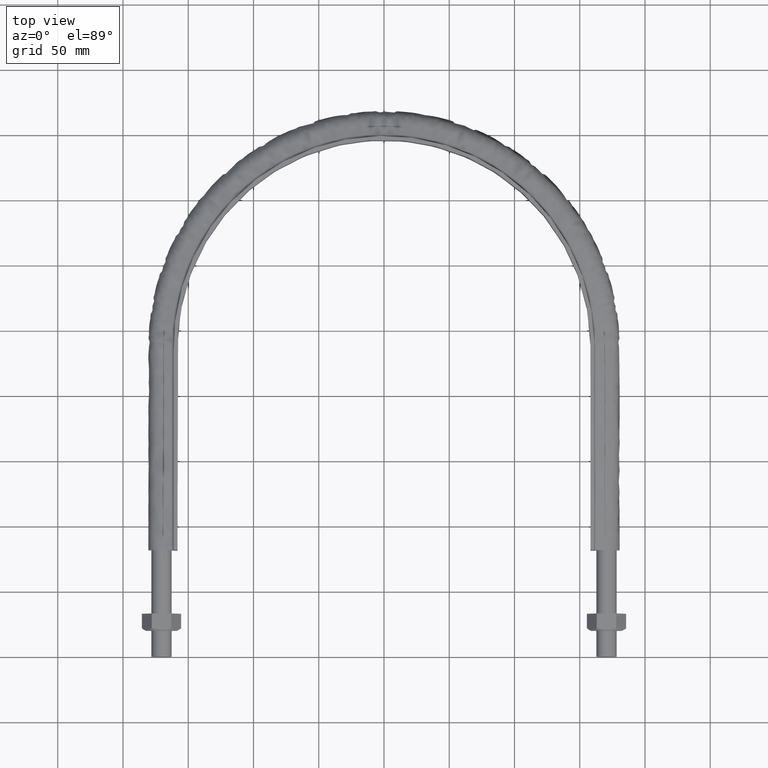
[diagram: clean part render]
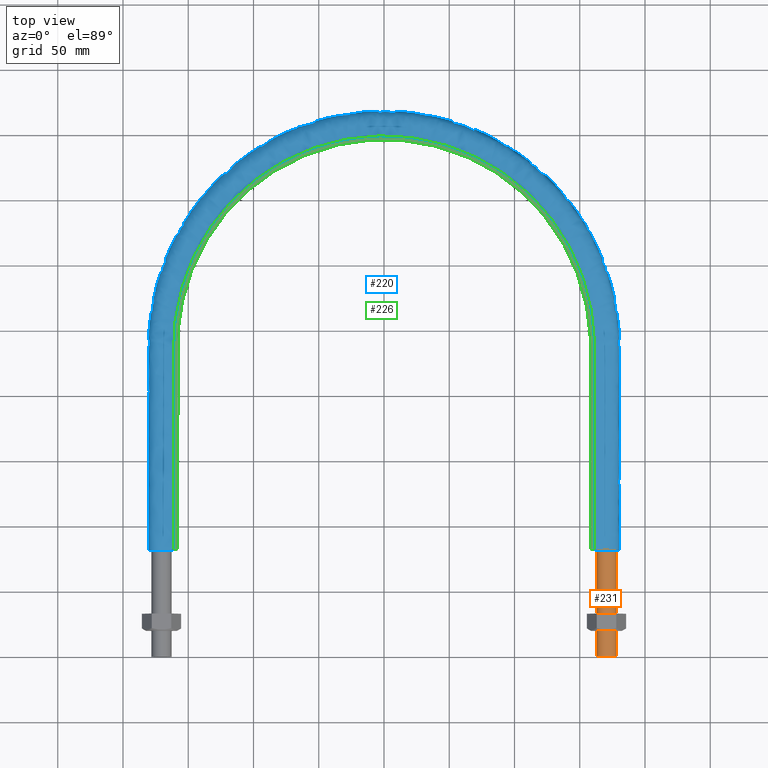
[diagram: same view with three faces highlighted in distinct colors, each labeled with its STEP entity id]
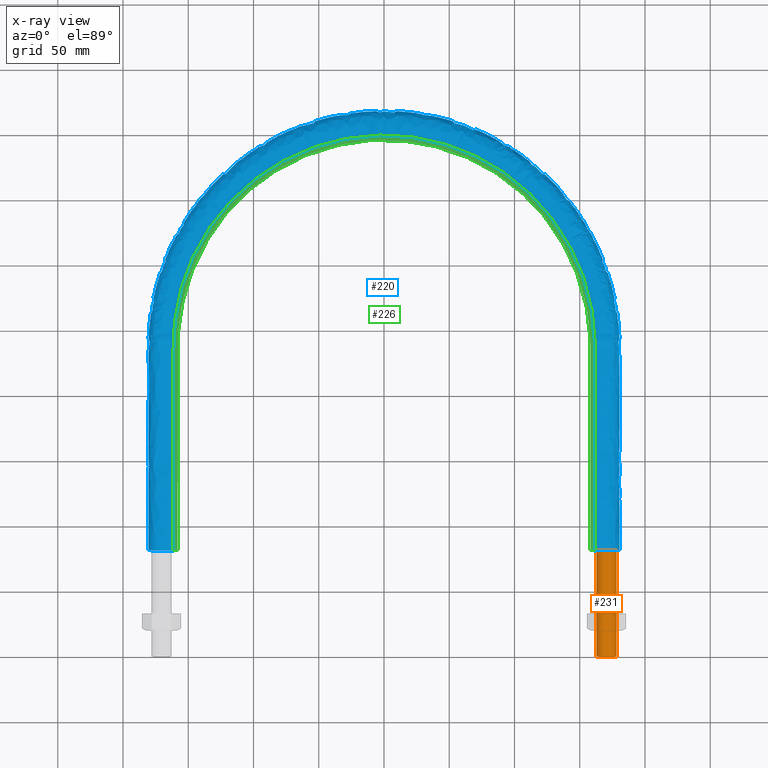
[diagram: x-ray of the same camera — body ghosted, the three highlighted faces saturated]
A machine part, top view with three faces highlighted in distinct colors.
The next image is the same camera in x-ray (body ghosted, the three faces saturated) — at least one of them is partly hidden behind the body in this view.
Their STEP definitions:

[orange] entity #231 — the highlighted cylindrical surface (bore or boss wall) has radius 7.75 mm, axis along (0, 1, 0).
#231 = ADVANCED_FACE( '', ( #289, #290 ), #291, .T. );
#289 = FACE_OUTER_BOUND( '', #1361, .T. );
#290 = FACE_OUTER_BOUND( '', #1362, .T. );
#291 = CYLINDRICAL_SURFACE( '', #1363, 7.75000000000001 );
#1361 = EDGE_LOOP( '', ( #1714 ) );
#1362 = EDGE_LOOP( '', ( #1715 ) );
#1363 = AXIS2_PLACEMENT_3D( '', #1716, #1717, #1718 );
#1714 = ORIENTED_EDGE( '', *, *, #1919, .T. );
#1715 = ORIENTED_EDGE( '', *, *, #1920, .F. );
#1716 = CARTESIAN_POINT( '', ( 170.500000000000, 90.0000000000000, 1.65321857766021E-014 ) );
#1717 = DIRECTION( '', ( 1.22460635382238E-016, 1.00000000000000, 1.83690953073357E-016 ) );
#1718 = DIRECTION( '', ( -1.00000000000000, 1.22460635382238E-016, 0.000000000000000 ) );
#1919 = EDGE_CURVE( '', #2007, #2007, #2008, .T. );
#1920 = EDGE_CURVE( '', #2009, #2009, #2010, .T. );
#2007 = VERTEX_POINT( '', #2616 );
#2008 = CIRCLE( '', #2617, 7.75000000000001 );
#2009 = VERTEX_POINT( '', #2618 );
#2010 = CIRCLE( '', #2619, 7.75000000000001 );
#2616 = CARTESIAN_POINT( '', ( 162.750000000000, 90.0000000000000, 1.65321857766021E-014 ) );
#2617 = AXIS2_PLACEMENT_3D( '', #2870, #2871, #2872 );
#2618 = CARTESIAN_POINT( '', ( 162.750000000000, -1.99304684084592E-014, 0.000000000000000 ) );
#2619 = AXIS2_PLACEMENT_3D( '', #2873, #2874, #2875 );
#2870 = CARTESIAN_POINT( '', ( 170.500000000000, 90.0000000000000, 1.65321857766021E-014 ) );
#2871 = DIRECTION( '', ( -1.22460635382238E-016, -1.00000000000000, -1.83690953073357E-016 ) );
#2872 = DIRECTION( '', ( -1.00000000000000, 1.22460635382238E-016, 0.000000000000000 ) );
#2873 = CARTESIAN_POINT( '', ( 170.500000000000, -2.08795383326715E-014, 0.000000000000000 ) );
#2874 = DIRECTION( '', ( -1.22460635382238E-016, -1.00000000000000, -1.83690953073357E-016 ) );
#2875 = DIRECTION( '', ( -1.00000000000000, 1.22460635382238E-016, 0.000000000000000 ) );

[blue] entity #220 — the highlighted face is a freeform B-spline surface patch.
#220 = ADVANCED_FACE( '', ( #262 ), #263, .F. );
#262 = FACE_OUTER_BOUND( '', #363, .T. );
#263 = B_SPLINE_SURFACE_WITH_KNOTS( '', 3, 3, ( ( #364, #365, #366, #367, #368, #369, #370, #371, #372, #373, #374, #375, #376, #377, #378, #379, #380, #381 ), ( #382, #383, #384, #385, #386, #387, #388, #389, #390, #391, #392, #393, #394, #395, #396, #397, #398, #399 ), ( #400, #401, #402, #403, #404, #405, #406, #407, #408, #409, #410, #411, #412, #413, #414, #415, #416, #417 ), ( #418, #419, #420, #421, #422, #423, #424, #425, #426, #427, #428, #429, #430, #431, #432, #433, #434, #435 ), ( #436, #437, #438, #439, #440, #441, #442, #443, #444, #445, #446, #447, #448, #449, #450, #451, #452, #453 ), ( #454, #455, #456, #457, #458, #459, #460, #461, #462, #463, #464, #465, #466, #467, #468, #469, #470, #471 ), ( #472, #473, #474, #475, #476, #477, #478, #479, #480, #481, #482, #483, #484, #485, #486, #487, #488, #489 ), ( #490, #491, #492, #493, #494, #495, #496, #497, #498, #499, #500, #501, #502, #503, #504, #505, #506, #507 ), ( #508, #509, #510, #511, #512, #513, #514, #515, #516, #517, #518, #519, #520, #521, #522, #523, #524, #525 ), ( #526, #527, #528, #529, #530, #531, #532, #533, #534, #535, #536, #537, #538, #539, #540, #541, #542, #543 ), ( #544, #545, #546, #547, #548, #549, #550, #551, #552, #553, #554, #555, #556, #557, #558, #559, #560, #561 ), ( #562, #563, #564, #565, #566, #567, #568, #569, #570, #571, #572, #573, #574, #575, #576, #577, #578, #579 ), ( #580, #581, #582, #583, #584, #585, #586, #587, #588, #589, #590, #591, #592, #593, #594, #595, #596, #597 ), ( #598, #599, #600, #601, #602, #603, #604, #605, #606, #607, #608, #609, #610, #611, #612, #613, #614, #615 ), ( #616, #617, #618, #619, #620, #621, #622, #623, #624, #625, #626, #627, #628, #629, #630, #631, #632, #633 ), ( #634, #635, #636, #637, #638, #639, #640, #641, #642, #643, #644, #645, #646, #647, #648, #649, #650, #651 ), ( #652, #653, #654, #655, #656, #657, #658, #659, #660, #661, #662, #663, #664, #665, #666, #667, #668, #669 ), ( #670, #671, #672, #673, #674, #675, #676, #677, #678, #679, #680, #681, #682, #683, #684, #685, #686, #687 ), ( #688, #689, #690, #691, #692, #693, #694, #695, #696, #697, #698, #699, #700, #701, #702, #703, #704, #705 ), ( #706, #707, #708, #709, #710, #711, #712, #713, #714, #715, #716, #717, #718, #719, #720, #721, #722, #723 ), ( #724, #725, #726, #727, #728, #729, #730, #731, #732, #733, #734, #735, #736, #737, #738, #739, #740, #741 ), ( #742, #743, #744, #745, #746, #747, #748, #749, #750, #751, #752, #753, #754, #755, #756, #757, #758, #759 ), ( #760, #761, #762, #763, #764, #765, #766, #767, #768, #769, #770, #771, #772, #773, #774, #775, #776, #777 ), ( #778, #779, #780, #781, #782, #783, #784, #785, #786, #787, #788, #789, #790, #791, #792, #793, #794, #795 ), ( #796, #797, #798, #799, #800, #801, #802, #803, #804, #805, #806, #807, #808, #809, #810, #811, #812, #813 ), ( #814, #815, #816, #817, #818, #819, #820, #821, #822, #823, #824, #825, #826, #827, #828, #829, #830, #831 ), ( #832, #833, #834, #835, #836, #837, #838, #839, #840, #841, #842, #843, #844, #845, #846, #847, #848, #849 ), ( #850, #851, #852, #853, #854, #855, #856, #857, #858, #859, #860, #861, #862, #863, #864, #865, #866, #867 ), ( #868, #869, #870, #871, #872, #873, #874, #875, #876, #877, #878, #879, #880, #881, #882, #883, #884, #885 ), ( #886, #887, #888, #889, #890, #891, #892, #893, #894, #895, #896, #897, #898, #899, #900, #901, #902, #903 ), ( #904, #905, #906, #907, #908, #909, #910, #911, #912, #913, #914, #915, #916, #917, #918, #919, #920, #921 ), ( #922, #923, #924, #925, #926, #927, #928, #929, #930, #931, #932, #933, #934, #935, #936, #937, #938, #939 ) ), .UNSPECIFIED., .F., .F., .F., ( 4, 3, 1, 1, 1, 3, 3, 1, 1, 1, 1, 3, 3, 1, 1, 1, 3, 4 ), ( 4, 3, 1, 1, 1, 1, 1, 1, 1, 1, 3, 4 ), ( 0.100000000000000, 0.150000000000000, 0.200000000000000, 0.250000000000000, 0.300000000000000, 0.350000000000000, 0.400000000000000, 0.450000000000000, 0.500000000000000, 0.550000000000000, 0.600000000000000, 0.650000000000000, 0.700000000000000, 0.750000000000000, 0.800000000000000, 0.850000000000000, 0.900000000000000, 0.950000000000000 ), ( 0.000000000000000, 1.00000000000000, 2.00000000000000, 3.00000000000000, 4.00000000000000, 5.00000000000000, 6.00000000000000, 7.00000000000000, 8.00000000000000, 9.00000000000000, 10.0000000000000, 11.0000000000000 ), .UNSPECIFIED. );
#363 = EDGE_LOOP( '', ( #1536, #1537, #1538, #1539 ) );
#364 = CARTESIAN_POINT( '', ( 161.250000000000, 81.6600000000000, -20.0000000000000 ) );
#365 = CARTESIAN_POINT( '', ( 161.250000000000, 133.693333333333, -20.0000000000000 ) );
#366 = CARTESIAN_POINT( '', ( 161.250000000000, 185.726666666667, -20.0000000000000 ) );
#367 = CARTESIAN_POINT( '', ( 161.250000000000, 237.760000000000, -20.0000000000000 ) );
#368 = CARTESIAN_POINT( '', ( 161.250000000000, 256.509565895344, -20.0000000000000 ) );
#369 = CARTESIAN_POINT( '', ( 154.633958016895, 294.047333691719, -20.0000000000000 ) );
#370 = CARTESIAN_POINT( '', ( 126.058757551235, 343.534471903553, -20.0000000000000 ) );
#371 = CARTESIAN_POINT( '', ( 82.2790104957765, 380.271791065797, -20.0000000000000 ) );
#372 = CARTESIAN_POINT( '', ( 28.5752004656597, 399.817941994703, -20.0000000000000 ) );
#373 = CARTESIAN_POINT( '', ( -28.5752004656594, 399.817941994703, -20.0000000000000 ) );
#374 = CARTESIAN_POINT( '', ( -82.2790104957763, 380.271791065797, -20.0000000000000 ) );
#375 = CARTESIAN_POINT( '', ( -126.058757551235, 343.534471903553, -20.0000000000001 ) );
#376 = CARTESIAN_POINT( '', ( -154.633958016895, 294.047333691719, -20.0000000000000 ) );
#377 = CARTESIAN_POINT( '', ( -161.250000000000, 256.509565895344, -20.0000000000000 ) );
#378 = CARTESIAN_POINT( '', ( -161.250000000000, 237.760000000000, -20.0000000000000 ) );
#379 = CARTESIAN_POINT( '', ( -161.250000000000, 185.726666666667, -20.0000000000000 ) );
#380 = CARTESIAN_POINT( '', ( -161.250000000000, 133.693333333333, -20.0000000000000 ) );
#381 = CARTESIAN_POINT( '', ( -161.250000000000, 81.6600000000000, -20.0000000000000 ) );
#382 = CARTESIAN_POINT( '', ( 161.250000000000, 81.6600000000000, -17.3666666666667 ) );
#383 = CARTESIAN_POINT( '', ( 161.250000000000, 133.693333333333, -17.3666666666667 ) );
#384 = CARTESIAN_POINT( '', ( 161.250000000000, 185.726666666667, -17.3666666666667 ) );
#385 = CARTESIAN_POINT( '', ( 161.250000000000, 237.760000000000, -17.3666666666667 ) );
#386 = CARTESIAN_POINT( '', ( 161.250000000000, 256.509565895344, -17.3666666666667 ) );
#387 = CARTESIAN_POINT( '', ( 154.633958016895, 294.047333691719, -17.3666666666667 ) );
#388 = CARTESIAN_POINT( '', ( 126.058757551235, 343.534471903553, -17.3666666666667 ) );
#389 = CARTESIAN_POINT( '', ( 82.2790104957765, 380.271791065797, -17.3666666666667 ) );
#390 = CARTESIAN_POINT( '', ( 28.5752004656597, 399.817941994703, -17.3666666666667 ) );
#391 = CARTESIAN_POINT( '', ( -28.5752004656594, 399.817941994703, -17.3666666666667 ) );
#392 = CARTESIAN_POINT( '', ( -82.2790104957763, 380.271791065797, -17.3666666666667 ) );
#393 = CARTESIAN_POINT( '', ( -126.058757551235, 343.534471903553, -17.3666666666667 ) );
#394 = CARTESIAN_POINT( '', ( -154.633958016895, 294.047333691719, -17.3666666666667 ) );
#395 = CARTESIAN_POINT( '', ( -161.250000000000, 256.509565895344, -17.3666666666667 ) );
#396 = CARTESIAN_POINT( '', ( -161.250000000000, 237.760000000000, -17.3666666666667 ) );
#397 = CARTESIAN_POINT( '', ( -161.250000000000, 185.726666666667, -17.3666666666667 ) );
#398 = CARTESIAN_POINT( '', ( -161.250000000000, 133.693333333333, -17.3666666666667 ) );
#399 = CARTESIAN_POINT( '', ( -161.250000000000, 81.6600000000000, -17.3666666666667 ) );
#400 = CARTESIAN_POINT( '', ( 161.250000000000, 81.6600000000000, -14.7333333333333 ) );
#401 = CARTESIAN_POINT( '', ( 161.250000000000, 133.693333333333, -14.7333333333333 ) );
#402 = CARTESIAN_POINT( '', ( 161.250000000000, 185.726666666667, -14.7333333333333 ) );
#403 = CARTESIAN_POINT( '', ( 161.250000000000, 237.760000000000, -14.7333333333333 ) );
#404 = CARTESIAN_POINT( '', ( 161.250000000000, 256.509565895344, -14.7333333333333 ) );
#405 = CARTESIAN_POINT( '', ( 154.633958016895, 294.047333691719, -14.7333333333333 ) );
#406 = CARTESIAN_POINT( '', ( 126.058757551235, 343.534471903553, -14.7333333333333 ) );
#407 = CARTESIAN_POINT( '', ( 82.2790104957765, 380.271791065797, -14.7333333333333 ) );
#408 = CARTESIAN_POINT( '', ( 28.5752004656597, 399.817941994703, -14.7333333333333 ) );
#409 = CARTESIAN_POINT( '', ( -28.5752004656594, 399.817941994703, -14.7333333333333 ) );
#410 = CARTESIAN_POINT( '', ( -82.2790104957763, 380.271791065797, -14.7333333333333 ) );
#411 = CARTESIAN_POINT( '', ( -126.058757551235, 343.534471903553, -14.7333333333334 ) );
#412 = CARTESIAN_POINT( '', ( -154.633958016895, 294.047333691719, -14.7333333333333 ) );
#413 = CARTESIAN_POINT( '', ( -161.250000000000, 256.509565895344, -14.7333333333333 ) );
#414 = CARTESIAN_POINT( '', ( -161.250000000000, 237.760000000000, -14.7333333333333 ) );
#415 = CARTESIAN_POINT( '', ( -161.250000000000, 185.726666666667, -14.7333333333333 ) );
#416 = CARTESIAN_POINT( '', ( -161.250000000000, 133.693333333333, -14.7333333333333 ) );
#417 = CARTESIAN_POINT( '', ( -161.250000000000, 81.6600000000000, -14.7333333333333 ) );
#418 = CARTESIAN_POINT( '', ( 161.250000000000, 81.6600000000000, -12.1000000000000 ) );
#419 = CARTESIAN_POINT( '', ( 161.250000000000, 133.693333333333, -12.1000000000000 ) );
#420 = CARTESIAN_POINT( '', ( 161.250000000000, 185.726666666667, -12.1000000000000 ) );
#421 = CARTESIAN_POINT( '', ( 161.250000000000, 237.760000000000, -12.1000000000000 ) );
#422 = CARTESIAN_POINT( '', ( 161.250000000000, 256.509565895344, -12.1000000000000 ) );
#423 = CARTESIAN_POINT( '', ( 154.633958016895, 294.047333691719, -12.1000000000000 ) );
#424 = CARTESIAN_POINT( '', ( 126.058757551235, 343.534471903553, -12.1000000000000 ) );
#425 = CARTESIAN_POINT( '', ( 82.2790104957765, 380.271791065797, -12.1000000000000 ) );
#426 = CARTESIAN_POINT( '', ( 28.5752004656597, 399.817941994703, -12.1000000000000 ) );
#427 = CARTESIAN_POINT( '', ( -28.5752004656594, 399.817941994703, -12.1000000000000 ) );
#428 = CARTESIAN_POINT( '', ( -82.2790104957763, 380.271791065797, -12.1000000000000 ) );
#429 = CARTESIAN_POINT( '', ( -126.058757551235, 343.534471903553, -12.1000000000000 ) );
#430 = CARTESIAN_POINT( '', ( -154.633958016895, 294.047333691719, -12.1000000000000 ) );
#431 = CARTESIAN_POINT( '', ( -161.250000000000, 256.509565895344, -12.1000000000000 ) );
#432 = CARTESIAN_POINT( '', ( -161.250000000000, 237.760000000000, -12.1000000000000 ) );
#433 = CARTESIAN_POINT( '', ( -161.250000000000, 185.726666666667, -12.1000000000000 ) );
#434 = CARTESIAN_POINT( '', ( -161.250000000000, 133.693333333333, -12.1000000000000 ) );
#435 = CARTESIAN_POINT( '', ( -161.250000000000, 81.6600000000000, -12.1000000000000 ) );
#436 = CARTESIAN_POINT( '', ( 161.250000000000, 81.6600000000000, -11.8382358417233 ) );
#437 = CARTESIAN_POINT( '', ( 161.250000000000, 133.693333333333, -11.8382358417233 ) );
#438 = CARTESIAN_POINT( '', ( 161.250000000000, 185.726666666667, -11.8382358417233 ) );
#439 = CARTESIAN_POINT( '', ( 161.250000000000, 237.760000000000, -11.8382358417233 ) );
#440 = CARTESIAN_POINT( '', ( 161.250000000000, 256.509565895344, -11.8382358417233 ) );
#441 = CARTESIAN_POINT( '', ( 154.633958016895, 294.047333691719, -11.8382358417233 ) );
#442 = CARTESIAN_POINT( '', ( 126.058757551235, 343.534471903553, -11.8382358417233 ) );
#443 = CARTESIAN_POINT( '', ( 82.2790104957765, 380.271791065797, -11.8382358417233 ) );
#444 = CARTESIAN_POINT( '', ( 28.5752004656597, 399.817941994703, -11.8382358417233 ) );
#445 = CARTESIAN_POINT( '', ( -28.5752004656594, 399.817941994703, -11.8382358417233 ) );
#446 = CARTESIAN_POINT( '', ( -82.2790104957763, 380.271791065797, -11.8382358417233 ) );
#447 = CARTESIAN_POINT( '', ( -126.058757551235, 343.534471903553, -11.8382358417233 ) );
#448 = CARTESIAN_POINT( '', ( -154.633958016895, 294.047333691719, -11.8382358417233 ) );
#449 = CARTESIAN_POINT( '', ( -161.250000000000, 256.509565895344, -11.8382358417233 ) );
#450 = CARTESIAN_POINT( '', ( -161.250000000000, 237.760000000000, -11.8382358417233 ) );
#451 = CARTESIAN_POINT( '', ( -161.250000000000, 185.726666666667, -11.8382358417233 ) );
#452 = CARTESIAN_POINT( '', ( -161.250000000000, 133.693333333333, -11.8382358417233 ) );
#453 = CARTESIAN_POINT( '', ( -161.250000000000, 81.6600000000000, -11.8382358417233 ) );
#454 = CARTESIAN_POINT( '', ( 161.354136256836, 81.6600000000000, -11.3147075251700 ) );
#455 = CARTESIAN_POINT( '', ( 161.354136256836, 133.693333333333, -11.3147075251700 ) );
#456 = CARTESIAN_POINT( '', ( 161.354136256836, 185.726666666667, -11.3147075251700 ) );
#457 = CARTESIAN_POINT( '', ( 161.354136256836, 237.760000000000, -11.3147075251700 ) );
#458 = CARTESIAN_POINT( '', ( 161.354136256836, 256.521807249844, -11.3147075251700 ) );
#459 = CARTESIAN_POINT( '', ( 154.733821592508, 294.083622792083, -11.3147075251700 ) );
#460 = CARTESIAN_POINT( '', ( 126.140167083966, 343.602798205459, -11.3147075251700 ) );
#461 = CARTESIAN_POINT( '', ( 82.3321467945002, 380.363821731487, -11.3147075251700 ) );
#462 = CARTESIAN_POINT( '', ( 28.5936545085423, 399.922600893287, -11.3147075251700 ) );
#463 = CARTESIAN_POINT( '', ( -28.5936545085421, 399.922600893287, -11.3147075251700 ) );
#464 = CARTESIAN_POINT( '', ( -82.3321467945000, 380.363821731487, -11.3147075251700 ) );
#465 = CARTESIAN_POINT( '', ( -126.140167083965, 343.602798205459, -11.3147075251700 ) );
#466 = CARTESIAN_POINT( '', ( -154.733821592508, 294.083622792083, -11.3147075251700 ) );
#467 = CARTESIAN_POINT( '', ( -161.354136256836, 256.521807249844, -11.3147075251700 ) );
#468 = CARTESIAN_POINT( '', ( -161.354136256836, 237.760000000000, -11.3147075251700 ) );
#469 = CARTESIAN_POINT( '', ( -161.354136256836, 185.726666666667, -11.3147075251700 ) );
#470 = CARTESIAN_POINT( '', ( -161.354136256836, 133.693333333333, -11.3147075251700 ) );
#471 = CARTESIAN_POINT( '', ( -161.354136256836, 81.6600000000000, -11.3147075251700 ) );
#472 = CARTESIAN_POINT( '', ( 161.798968710939, 81.6600000000000, -10.6489687109389 ) );
#473 = CARTESIAN_POINT( '', ( 161.798968710939, 133.693333333333, -10.6489687109389 ) );
#474 = CARTESIAN_POINT( '', ( 161.798968710939, 185.726666666667, -10.6489687109389 ) );
#475 = CARTESIAN_POINT( '', ( 161.798968710939, 237.760000000000, -10.6489687109389 ) );
#476 = CARTESIAN_POINT( '', ( 161.798968710939, 256.574097892213, -10.6489687109389 ) );
#477 = CARTESIAN_POINT( '', ( 155.160402696584, 294.238636713867, -10.6489687109389 ) );
#478 = CARTESIAN_POINT( '', ( 126.487919186184, 343.894663473910, -10.6489687109389 ) );
#479 = CARTESIAN_POINT( '', ( 82.5591258590583, 380.756943475204, -10.6489687109389 ) );
#480 = CARTESIAN_POINT( '', ( 28.6724835104005, 400.369665884054, -10.6489687109389 ) );
#481 = CARTESIAN_POINT( '', ( -28.6724835104003, 400.369665884054, -10.6489687109389 ) );
#482 = CARTESIAN_POINT( '', ( -82.5591258590581, 380.756943475204, -10.6489687109389 ) );
#483 = CARTESIAN_POINT( '', ( -126.487919186184, 343.894663473910, -10.6489687109389 ) );
#484 = CARTESIAN_POINT( '', ( -155.160402696584, 294.238636713867, -10.6489687109389 ) );
#485 = CARTESIAN_POINT( '', ( -161.798968710939, 256.574097892213, -10.6489687109389 ) );
#486 = CARTESIAN_POINT( '', ( -161.798968710939, 237.760000000000, -10.6489687109389 ) );
#487 = CARTESIAN_POINT( '', ( -161.798968710939, 185.726666666667, -10.6489687109389 ) );
#488 = CARTESIAN_POINT( '', ( -161.798968710939, 133.693333333333, -10.6489687109389 ) );
#489 = CARTESIAN_POINT( '', ( -161.798968710939, 81.6600000000000, -10.6489687109389 ) );
#490 = CARTESIAN_POINT( '', ( 162.464707525170, 81.6600000000000, -10.2041362568359 ) );
#491 = CARTESIAN_POINT( '', ( 162.464707525170, 133.693333333333, -10.2041362568359 ) );
#492 = CARTESIAN_POINT( '', ( 162.464707525170, 185.726666666667, -10.2041362568359 ) );
#493 = CARTESIAN_POINT( '', ( 162.464707525170, 237.760000000000, -10.2041362568359 ) );
#494 = CARTESIAN_POINT( '', ( 162.464707525170, 256.652356368916, -10.2041362568359 ) );
#495 = CARTESIAN_POINT( '', ( 155.798826435189, 294.470631442503, -10.2041362568359 ) );
#496 = CARTESIAN_POINT( '', ( 127.008366986343, 344.331470716595, -10.2041362568359 ) );
#497 = CARTESIAN_POINT( '', ( 82.8988240350805, 381.345291742280, -10.2041362568359 ) );
#498 = CARTESIAN_POINT( '', ( 28.7904594488465, 401.038745925522, -10.2041362568359 ) );
#499 = CARTESIAN_POINT( '', ( -28.7904594488463, 401.038745925522, -10.2041362568359 ) );
#500 = CARTESIAN_POINT( '', ( -82.8988240350803, 381.345291742280, -10.2041362568359 ) );
#501 = CARTESIAN_POINT( '', ( -127.008366986342, 344.331470716594, -10.2041362568359 ) );
#502 = CARTESIAN_POINT( '', ( -155.798826435189, 294.470631442503, -10.2041362568359 ) );
#503 = CARTESIAN_POINT( '', ( -162.464707525170, 256.652356368916, -10.2041362568359 ) );
#504 = CARTESIAN_POINT( '', ( -162.464707525170, 237.760000000000, -10.2041362568359 ) );
#505 = CARTESIAN_POINT( '', ( -162.464707525170, 185.726666666667, -10.2041362568359 ) );
#506 = CARTESIAN_POINT( '', ( -162.464707525170, 133.693333333333, -10.2041362568359 ) );
#507 = CARTESIAN_POINT( '', ( -162.464707525170, 81.6600000000000, -10.2041362568359 ) );
#508 = CARTESIAN_POINT( '', ( 162.988235841723, 81.6600000000000, -10.1000000000000 ) );
#509 = CARTESIAN_POINT( '', ( 162.988235841723, 133.693333333333, -10.1000000000000 ) );
#510 = CARTESIAN_POINT( '', ( 162.988235841723, 185.726666666667, -10.1000000000000 ) );
#511 = CARTESIAN_POINT( '', ( 162.988235841723, 237.760000000000, -10.1000000000000 ) );
#512 = CARTESIAN_POINT( '', ( 162.988235841723, 256.713897813831, -10.1000000000000 ) );
#513 = CARTESIAN_POINT( '', ( 156.300874532693, 294.653069069897, -10.1000000000000 ) );
#514 = CARTESIAN_POINT( '', ( 127.417640345273, 344.674970232520, -10.1000000000000 ) );
#515 = CARTESIAN_POINT( '', ( 83.1659582481193, 381.807961142389, -10.1000000000000 ) );
#516 = CARTESIAN_POINT( '', ( 28.8832341874199, 401.564901739576, -10.1000000000000 ) );
#517 = CARTESIAN_POINT( '', ( -28.8832341874197, 401.564901739576, -10.1000000000000 ) );
#518 = CARTESIAN_POINT( '', ( -83.1659582481192, 381.807961142389, -10.1000000000000 ) );
#519 = CARTESIAN_POINT( '', ( -127.417640345273, 344.674970232520, -10.1000000000000 ) );
#520 = CARTESIAN_POINT( '', ( -156.300874532693, 294.653069069897, -10.1000000000000 ) );
#521 = CARTESIAN_POINT( '', ( -162.988235841723, 256.713897813831, -10.1000000000000 ) );
#522 = CARTESIAN_POINT( '', ( -162.988235841723, 237.760000000000, -10.1000000000000 ) );
#523 = CARTESIAN_POINT( '', ( -162.988235841723, 185.726666666667, -10.1000000000000 ) );
#524 = CARTESIAN_POINT( '', ( -162.988235841723, 133.693333333333, -10.1000000000000 ) );
#525 = CARTESIAN_POINT( '', ( -162.988235841723, 81.6600000000000, -10.1000000000000 ) );
#526 = CARTESIAN_POINT( '', ( 163.250000000000, 81.6600000000000, -10.1000000000000 ) );
#527 = CARTESIAN_POINT( '', ( 163.250000000000, 133.693333333333, -10.1000000000000 ) );
#528 = CARTESIAN_POINT( '', ( 163.250000000000, 185.726666666667, -10.1000000000000 ) );
#529 = CARTESIAN_POINT( '', ( 163.250000000000, 237.760000000000, -10.1000000000000 ) );
#530 = CARTESIAN_POINT( '', ( 163.250000000000, 256.744668536289, -10.1000000000000 ) );
#531 = CARTESIAN_POINT( '', ( 156.551898581445, 294.744287883594, -10.1000000000000 ) );
#532 = CARTESIAN_POINT( '', ( 127.622277024739, 344.846719990482, -10.1000000000000 ) );
#533 = CARTESIAN_POINT( '', ( 83.2995253546388, 382.039295842443, -10.1000000000000 ) );
#534 = CARTESIAN_POINT( '', ( 28.9296215567066, 401.827979646603, -10.1000000000000 ) );
#535 = CARTESIAN_POINT( '', ( -28.9296215567064, 401.827979646603, -10.1000000000000 ) );
#536 = CARTESIAN_POINT( '', ( -83.2995253546386, 382.039295842443, -10.1000000000000 ) );
#537 = CARTESIAN_POINT( '', ( -127.622277024739, 344.846719990482, -10.1000000000000 ) );
#538 = CARTESIAN_POINT( '', ( -156.551898581445, 294.744287883593, -10.1000000000000 ) );
#539 = CARTESIAN_POINT( '', ( -163.250000000000, 256.744668536289, -10.1000000000000 ) );
#540 = CARTESIAN_POINT( '', ( -163.250000000000, 237.760000000000, -10.1000000000000 ) );
#541 = CARTESIAN_POINT( '', ( -163.250000000000, 185.726666666667, -10.1000000000000 ) );
#542 = CARTESIAN_POINT( '', ( -163.250000000000, 133.693333333333, -10.1000000000000 ) );
#543 = CARTESIAN_POINT( '', ( -163.250000000000, 81.6600000000000, -10.1000000000000 ) );
#544 = CARTESIAN_POINT( '', ( 165.666666666667, 81.6600000000000, -10.1000000000000 ) );
#545 = CARTESIAN_POINT( '', ( 165.666666666667, 133.693333333333, -10.1000000000000 ) );
#546 = CARTESIAN_POINT( '', ( 165.666666666667, 185.726666666667, -10.1000000000000 ) );
#547 = CARTESIAN_POINT( '', ( 165.666666666667, 237.760000000000, -10.1000000000000 ) );
#548 = CARTESIAN_POINT( '', ( 165.666666666667, 257.028750894097, -10.1000000000000 ) );
#549 = CARTESIAN_POINT( '', ( 158.869410096944, 295.586440865442, -10.1000000000000 ) );
#550 = CARTESIAN_POINT( '', ( 129.511529721889, 346.432353095522, -10.1000000000000 ) );
#551 = CARTESIAN_POINT( '', ( 84.5326474757641, 384.175030780890, -10.1000000000000 ) );
#552 = CARTESIAN_POINT( '', ( 29.3578803750550, 404.256775142649, -10.1000000000000 ) );
#553 = CARTESIAN_POINT( '', ( -29.3578803750548, 404.256775142649, -10.1000000000000 ) );
#554 = CARTESIAN_POINT( '', ( -84.5326474757640, 384.175030780890, -10.1000000000000 ) );
#555 = CARTESIAN_POINT( '', ( -129.511529721889, 346.432353095522, -10.1000000000000 ) );
#556 = CARTESIAN_POINT( '', ( -158.869410096944, 295.586440865442, -10.1000000000000 ) );
#557 = CARTESIAN_POINT( '', ( -165.666666666667, 257.028750894097, -10.1000000000000 ) );
#558 = CARTESIAN_POINT( '', ( -165.666666666667, 237.760000000000, -10.1000000000000 ) );
#559 = CARTESIAN_POINT( '', ( -165.666666666667, 185.726666666667, -10.1000000000000 ) );
#560 = CARTESIAN_POINT( '', ( -165.666666666667, 133.693333333333, -10.1000000000000 ) );
#561 = CARTESIAN_POINT( '', ( -165.666666666667, 81.6600000000000, -10.1000000000000 ) );
#562 = CARTESIAN_POINT( '', ( 168.083333333333, 81.6600000000000, -10.1000000000000 ) );
#563 = CARTESIAN_POINT( '', ( 168.083333333333, 133.693333333333, -10.1000000000000 ) );
#564 = CARTESIAN_POINT( '', ( 168.083333333333, 185.726666666667, -10.1000000000000 ) );
#565 = CARTESIAN_POINT( '', ( 168.083333333333, 237.760000000000, -10.1000000000000 ) );
#566 = CARTESIAN_POINT( '', ( 168.083333333333, 257.312833251905, -10.1000000000000 ) );
#567 = CARTESIAN_POINT( '', ( 161.186921612443, 296.428593847291, -10.1000000000000 ) );
#568 = CARTESIAN_POINT( '', ( 131.400782419039, 348.017986200562, -10.1000000000000 ) );
#569 = CARTESIAN_POINT( '', ( 85.7657695968895, 386.310765719337, -10.1000000000000 ) );
#570 = CARTESIAN_POINT( '', ( 29.7861391934034, 406.685570638695, -10.1000000000000 ) );
#571 = CARTESIAN_POINT( '', ( -29.7861391934031, 406.685570638695, -10.1000000000000 ) );
#572 = CARTESIAN_POINT( '', ( -85.7657695968893, 386.310765719338, -10.1000000000000 ) );
#573 = CARTESIAN_POINT( '', ( -131.400782419039, 348.017986200562, -10.1000000000000 ) );
#574 = CARTESIAN_POINT( '', ( -161.186921612443, 296.428593847291, -10.1000000000000 ) );
#575 = CARTESIAN_POINT( '', ( -168.083333333333, 257.312833251905, -10.1000000000000 ) );
#576 = CARTESIAN_POINT( '', ( -168.083333333333, 237.760000000000, -10.1000000000000 ) );
#577 = CARTESIAN_POINT( '', ( -168.083333333333, 185.726666666667, -10.1000000000000 ) );
#578 = CARTESIAN_POINT( '', ( -168.083333333333, 133.693333333333, -10.1000000000000 ) );
#579 = CARTESIAN_POINT( '', ( -168.083333333333, 81.6600000000000, -10.1000000000000 ) );
#580 = CARTESIAN_POINT( '', ( 170.500000000000, 81.6600000000000, -10.1000000000000 ) );
#581 = CARTESIAN_POINT( '', ( 170.500000000000, 133.693333333333, -10.1000000000000 ) );
#582 = CARTESIAN_POINT( '', ( 170.500000000000, 185.726666666667, -10.1000000000000 ) );
#583 = CARTESIAN_POINT( '', ( 170.500000000000, 237.760000000000, -10.1000000000000 ) );
#584 = CARTESIAN_POINT( '', ( 170.500000000000, 257.596915609713, -10.1000000000000 ) );
#585 = CARTESIAN_POINT( '', ( 163.504433127941, 297.270746829139, -10.1000000000000 ) );
#586 = CARTESIAN_POINT( '', ( 133.290035116190, 349.603619305602, -10.1000000000000 ) );
#587 = CARTESIAN_POINT( '', ( 86.9988917180148, 388.446500657784, -10.1000000000000 ) );
#588 = CARTESIAN_POINT( '', ( 30.2143980117518, 409.114366134741, -10.1000000000000 ) );
#589 = CARTESIAN_POINT( '', ( -30.2143980117515, 409.114366134741, -10.1000000000000 ) );
#590 = CARTESIAN_POINT( '', ( -86.9988917180146, 388.446500657785, -10.1000000000000 ) );
#591 = CARTESIAN_POINT( '', ( -133.290035116189, 349.603619305602, -10.1000000000000 ) );
#592 = CARTESIAN_POINT( '', ( -163.504433127941, 297.270746829139, -10.1000000000000 ) );
#593 = CARTESIAN_POINT( '', ( -170.500000000000, 257.596915609713, -10.1000000000000 ) );
#594 = CARTESIAN_POINT( '', ( -170.500000000000, 237.760000000000, -10.1000000000000 ) );
#595 = CARTESIAN_POINT( '', ( -170.500000000000, 185.726666666667, -10.1000000000000 ) );
#596 = CARTESIAN_POINT( '', ( -170.500000000000, 133.693333333333, -10.1000000000000 ) );
#597 = CARTESIAN_POINT( '', ( -170.500000000000, 81.6600000000000, -10.1000000000000 ) );
#598 = CARTESIAN_POINT( '', ( 172.613419413283, 81.6600000000000, -10.1000000000000 ) );
#599 = CARTESIAN_POINT( '', ( 172.613419413283, 133.693333333333, -10.1000000000000 ) );
#600 = CARTESIAN_POINT( '', ( 172.613419413283, 185.726666666667, -10.1000000000000 ) );
#601 = CARTESIAN_POINT( '', ( 172.613419413283, 237.760000000000, -10.1000000000000 ) );
#602 = CARTESIAN_POINT( '', ( 172.613419413283, 257.845350852456, -10.1000000000000 ) );
#603 = CARTESIAN_POINT( '', ( 165.531139539264, 298.007225088778, -10.1000000000000 ) );
#604 = CARTESIAN_POINT( '', ( 134.942221320364, 350.990284596582, -10.1000000000000 ) );
#605 = CARTESIAN_POINT( '', ( 88.0772796751465, 390.314240111801, -10.1000000000000 ) );
#606 = CARTESIAN_POINT( '', ( 30.5889182188996, 411.238392432219, -10.1000000000000 ) );
#607 = CARTESIAN_POINT( '', ( -30.5889182188993, 411.238392432219, -10.1000000000000 ) );
#608 = CARTESIAN_POINT( '', ( -88.0772796751463, 390.314240111802, -10.1000000000000 ) );
#609 = CARTESIAN_POINT( '', ( -134.942221320364, 350.990284596582, -10.1000000000000 ) );
#610 = CARTESIAN_POINT( '', ( -165.531139539263, 298.007225088778, -10.1000000000000 ) );
#611 = CARTESIAN_POINT( '', ( -172.613419413283, 257.845350852456, -10.1000000000000 ) );
#612 = CARTESIAN_POINT( '', ( -172.613419413283, 237.760000000000, -10.1000000000000 ) );
#613 = CARTESIAN_POINT( '', ( -172.613419413283, 185.726666666667, -10.1000000000000 ) );
#614 = CARTESIAN_POINT( '', ( -172.613419413283, 133.693333333333, -10.1000000000000 ) );
#615 = CARTESIAN_POINT( '', ( -172.613419413283, 81.6600000000000, -10.1000000000000 ) );
#616 = CARTESIAN_POINT( '', ( 176.840258239849, 81.6600000000000, -8.72661681244669 ) );
#617 = CARTESIAN_POINT( '', ( 176.840258239849, 133.693333333333, -8.72661681244669 ) );
#618 = CARTESIAN_POINT( '', ( 176.840258239849, 185.726666666667, -8.72661681244669 ) );
#619 = CARTESIAN_POINT( '', ( 176.840258239849, 237.760000000000, -8.72661681244669 ) );
#620 = CARTESIAN_POINT( '', ( 176.840258239849, 258.342221337943, -8.72661681244669 ) );
#621 = CARTESIAN_POINT( '', ( 169.584552361908, 299.480181608055, -8.72661681244669 ) );
#622 = CARTESIAN_POINT( '', ( 138.246593728713, 353.763615178542, -8.72661681244669 ) );
#623 = CARTESIAN_POINT( '', ( 90.2340555894100, 394.049719019836, -8.72661681244669 ) );
#624 = CARTESIAN_POINT( '', ( 31.3379586331951, 415.486445027174, -8.72661681244669 ) );
#625 = CARTESIAN_POINT( '', ( -31.3379586331949, 415.486445027174, -8.72661681244670 ) );
#626 = CARTESIAN_POINT( '', ( -90.2340555894098, 394.049719019836, -8.72661681244669 ) );
#627 = CARTESIAN_POINT( '', ( -138.246593728713, 353.763615178542, -8.72661681244670 ) );
#628 = CARTESIAN_POINT( '', ( -169.584552361908, 299.480181608055, -8.72661681244669 ) );
#629 = CARTESIAN_POINT( '', ( -176.840258239849, 258.342221337943, -8.72661681244669 ) );
#630 = CARTESIAN_POINT( '', ( -176.840258239849, 237.760000000000, -8.72661681244669 ) );
#631 = CARTESIAN_POINT( '', ( -176.840258239849, 185.726666666667, -8.72661681244669 ) );
#632 = CARTESIAN_POINT( '', ( -176.840258239849, 133.693333333333, -8.72661681244669 ) );
#633 = CARTESIAN_POINT( '', ( -176.840258239849, 81.6600000000000, -8.72661681244669 ) );
#634 = CARTESIAN_POINT( '', ( 180.758753329527, 81.6600000000000, -3.33327101555837 ) );
#635 = CARTESIAN_POINT( '', ( 180.758753329527, 133.693333333333, -3.33327101555837 ) );
#636 = CARTESIAN_POINT( '', ( 180.758753329527, 185.726666666667, -3.33327101555837 ) );
#637 = CARTESIAN_POINT( '', ( 180.758753329527, 237.760000000000, -3.33327101555837 ) );
#638 = CARTESIAN_POINT( '', ( 180.758753329528, 258.802845609999, -3.33327101555837 ) );
#639 = CARTESIAN_POINT( '', ( 173.342272704151, 300.845687397351, -3.33327101555837 ) );
#640 = CARTESIAN_POINT( '', ( 141.309915418483, 356.334634021078, -3.33327101555837 ) );
#641 = CARTESIAN_POINT( '', ( 92.2334968211080, 397.512698413971, -3.33327101555837 ) );
#642 = CARTESIAN_POINT( '', ( 32.0323572856680, 419.424606361694, -3.33327101555837 ) );
#643 = CARTESIAN_POINT( '', ( -32.0323572856679, 419.424606361694, -3.33327101555837 ) );
#644 = CARTESIAN_POINT( '', ( -92.2334968211077, 397.512698413971, -3.33327101555837 ) );
#645 = CARTESIAN_POINT( '', ( -141.309915418483, 356.334634021078, -3.33327101555838 ) );
#646 = CARTESIAN_POINT( '', ( -173.342272704151, 300.845687397351, -3.33327101555837 ) );
#647 = CARTESIAN_POINT( '', ( -180.758753329527, 258.802845609999, -3.33327101555837 ) );
#648 = CARTESIAN_POINT( '', ( -180.758753329527, 237.760000000000, -3.33327101555837 ) );
#649 = CARTESIAN_POINT( '', ( -180.758753329527, 185.726666666667, -3.33327101555837 ) );
#650 = CARTESIAN_POINT( '', ( -180.758753329527, 133.693333333333, -3.33327101555837 ) );
#651 = CARTESIAN_POINT( '', ( -180.758753329527, 81.6600000000000, -3.33327101555837 ) );
#652 = CARTESIAN_POINT( '', ( 180.758753329527, 81.6600000000000, 3.33327101555838 ) );
#653 = CARTESIAN_POINT( '', ( 180.758753329527, 133.693333333333, 3.33327101555838 ) );
#654 = CARTESIAN_POINT( '', ( 180.758753329527, 185.726666666667, 3.33327101555838 ) );
#655 = CARTESIAN_POINT( '', ( 180.758753329527, 237.760000000000, 3.33327101555838 ) );
#656 = CARTESIAN_POINT( '', ( 180.758753329528, 258.802845609999, 3.33327101555837 ) );
#657 = CARTESIAN_POINT( '', ( 173.342272704151, 300.845687397351, 3.33327101555837 ) );
#658 = CARTESIAN_POINT( '', ( 141.309915418483, 356.334634021078, 3.33327101555838 ) );
#659 = CARTESIAN_POINT( '', ( 92.2334968211080, 397.512698413971, 3.33327101555838 ) );
#660 = CARTESIAN_POINT( '', ( 32.0323572856680, 419.424606361694, 3.33327101555837 ) );
#661 = CARTESIAN_POINT( '', ( -32.0323572856679, 419.424606361694, 3.33327101555838 ) );
#662 = CARTESIAN_POINT( '', ( -92.2334968211077, 397.512698413971, 3.33327101555837 ) );
#663 = CARTESIAN_POINT( '', ( -141.309915418483, 356.334634021078, 3.33327101555838 ) );
#664 = CARTESIAN_POINT( '', ( -173.342272704151, 300.845687397351, 3.33327101555837 ) );
#665 = CARTESIAN_POINT( '', ( -180.758753329527, 258.802845609999, 3.33327101555838 ) );
#666 = CARTESIAN_POINT( '', ( -180.758753329527, 237.760000000000, 3.33327101555838 ) );
#667 = CARTESIAN_POINT( '', ( -180.758753329527, 185.726666666667, 3.33327101555838 ) );
#668 = CARTESIAN_POINT( '', ( -180.758753329527, 133.693333333333, 3.33327101555838 ) );
#669 = CARTESIAN_POINT( '', ( -180.758753329527, 81.6600000000000, 3.33327101555838 ) );
#670 = CARTESIAN_POINT( '', ( 176.840258239849, 81.6600000000000, 8.72661681244669 ) );
#671 = CARTESIAN_POINT( '', ( 176.840258239849, 133.693333333333, 8.72661681244669 ) );
#672 = CARTESIAN_POINT( '', ( 176.840258239849, 185.726666666667, 8.72661681244669 ) );
#673 = CARTESIAN_POINT( '', ( 176.840258239849, 237.760000000000, 8.72661681244669 ) );
#674 = CARTESIAN_POINT( '', ( 176.840258239849, 258.342221337943, 8.72661681244669 ) );
#675 = CARTESIAN_POINT( '', ( 169.584552361908, 299.480181608055, 8.72661681244669 ) );
#676 = CARTESIAN_POINT( '', ( 138.246593728713, 353.763615178542, 8.72661681244669 ) );
#677 = CARTESIAN_POINT( '', ( 90.2340555894100, 394.049719019836, 8.72661681244670 ) );
#678 = CARTESIAN_POINT( '', ( 31.3379586331951, 415.486445027174, 8.72661681244669 ) );
#679 = CARTESIAN_POINT( '', ( -31.3379586331949, 415.486445027174, 8.72661681244670 ) );
#680 = CARTESIAN_POINT( '', ( -90.2340555894098, 394.049719019836, 8.72661681244669 ) );
#681 = CARTESIAN_POINT( '', ( -138.246593728713, 353.763615178542, 8.72661681244671 ) );
#682 = CARTESIAN_POINT( '', ( -169.584552361908, 299.480181608055, 8.72661681244669 ) );
#683 = CARTESIAN_POINT( '', ( -176.840258239849, 258.342221337943, 8.72661681244669 ) );
#684 = CARTESIAN_POINT( '', ( -176.840258239849, 237.760000000000, 8.72661681244669 ) );
#685 = CARTESIAN_POINT( '', ( -176.840258239849, 185.726666666667, 8.72661681244669 ) );
#686 = CARTESIAN_POINT( '', ( -176.840258239849, 133.693333333333, 8.72661681244669 ) );
#687 = CARTESIAN_POINT( '', ( -176.840258239849, 81.6600000000000, 8.72661681244669 ) );
#688 = CARTESIAN_POINT( '', ( 172.613419413283, 81.6600000000000, 10.1000000000000 ) );
#689 = CARTESIAN_POINT( '', ( 172.613419413283, 133.693333333333, 10.1000000000000 ) );
#690 = CARTESIAN_POINT( '', ( 172.613419413283, 185.726666666667, 10.1000000000000 ) );
#691 = CARTESIAN_POINT( '', ( 172.613419413283, 237.760000000000, 10.1000000000000 ) );
#692 = CARTESIAN_POINT( '', ( 172.613419413283, 257.845350852456, 10.1000000000000 ) );
#693 = CARTESIAN_POINT( '', ( 165.531139539264, 298.007225088778, 10.1000000000000 ) );
#694 = CARTESIAN_POINT( '', ( 134.942221320364, 350.990284596582, 10.1000000000000 ) );
#695 = CARTESIAN_POINT( '', ( 88.0772796751465, 390.314240111801, 10.1000000000000 ) );
#696 = CARTESIAN_POINT( '', ( 30.5889182188996, 411.238392432219, 10.1000000000000 ) );
#697 = CARTESIAN_POINT( '', ( -30.5889182188993, 411.238392432219, 10.1000000000000 ) );
#698 = CARTESIAN_POINT( '', ( -88.0772796751463, 390.314240111802, 10.1000000000000 ) );
#699 = CARTESIAN_POINT( '', ( -134.942221320364, 350.990284596582, 10.1000000000000 ) );
#700 = CARTESIAN_POINT( '', ( -165.531139539263, 298.007225088778, 10.1000000000000 ) );
#701 = CARTESIAN_POINT( '', ( -172.613419413283, 257.845350852456, 10.1000000000000 ) );
#702 = CARTESIAN_POINT( '', ( -172.613419413283, 237.760000000000, 10.1000000000000 ) );
#703 = CARTESIAN_POINT( '', ( -172.613419413283, 185.726666666667, 10.1000000000000 ) );
#704 = CARTESIAN_POINT( '', ( -172.613419413283, 133.693333333333, 10.1000000000000 ) );
#705 = CARTESIAN_POINT( '', ( -172.613419413283, 81.6600000000000, 10.1000000000000 ) );
#706 = CARTESIAN_POINT( '', ( 170.500000000000, 81.6600000000000, 10.1000000000000 ) );
#707 = CARTESIAN_POINT( '', ( 170.500000000000, 133.693333333333, 10.1000000000000 ) );
#708 = CARTESIAN_POINT( '', ( 170.500000000000, 185.726666666667, 10.1000000000000 ) );
#709 = CARTESIAN_POINT( '', ( 170.500000000000, 237.760000000000, 10.1000000000000 ) );
#710 = CARTESIAN_POINT( '', ( 170.500000000000, 257.596915609713, 10.1000000000000 ) );
#711 = CARTESIAN_POINT( '', ( 163.504433127941, 297.270746829140, 10.1000000000000 ) );
#712 = CARTESIAN_POINT( '', ( 133.290035116190, 349.603619305602, 10.1000000000000 ) );
#713 = CARTESIAN_POINT( '', ( 86.9988917180148, 388.446500657785, 10.1000000000000 ) );
#714 = CARTESIAN_POINT( '', ( 30.2143980117518, 409.114366134741, 10.1000000000000 ) );
#715 = CARTESIAN_POINT( '', ( -30.2143980117516, 409.114366134741, 10.1000000000000 ) );
#716 = CARTESIAN_POINT( '', ( -86.9988917180146, 388.446500657785, 10.1000000000000 ) );
#717 = CARTESIAN_POINT( '', ( -133.290035116189, 349.603619305602, 10.1000000000000 ) );
#718 = CARTESIAN_POINT( '', ( -163.504433127941, 297.270746829139, 10.1000000000000 ) );
#719 = CARTESIAN_POINT( '', ( -170.500000000000, 257.596915609713, 10.1000000000000 ) );
#720 = CARTESIAN_POINT( '', ( -170.500000000000, 237.760000000000, 10.1000000000000 ) );
#721 = CARTESIAN_POINT( '', ( -170.500000000000, 185.726666666667, 10.1000000000000 ) );
#722 = CARTESIAN_POINT( '', ( -170.500000000000, 133.693333333333, 10.1000000000000 ) );
#723 = CARTESIAN_POINT( '', ( -170.500000000000, 81.6600000000000, 10.1000000000000 ) );
#724 = CARTESIAN_POINT( '', ( 168.083333333333, 81.6600000000000, 10.1000000000000 ) );
#725 = CARTESIAN_POINT( '', ( 168.083333333333, 133.693333333333, 10.1000000000000 ) );
#726 = CARTESIAN_POINT( '', ( 168.083333333333, 185.726666666667, 10.1000000000000 ) );
#727 = CARTESIAN_POINT( '', ( 168.083333333333, 237.760000000000, 10.1000000000000 ) );
#728 = CARTESIAN_POINT( '', ( 168.083333333333, 257.312833251905, 10.1000000000000 ) );
#729 = CARTESIAN_POINT( '', ( 161.186921612443, 296.428593847291, 10.1000000000000 ) );
#730 = CARTESIAN_POINT( '', ( 131.400782419039, 348.017986200562, 10.1000000000000 ) );
#731 = CARTESIAN_POINT( '', ( 85.7657695968895, 386.310765719337, 10.1000000000000 ) );
#732 = CARTESIAN_POINT( '', ( 29.7861391934034, 406.685570638695, 10.1000000000000 ) );
#733 = CARTESIAN_POINT( '', ( -29.7861391934032, 406.685570638695, 10.1000000000000 ) );
#734 = CARTESIAN_POINT( '', ( -85.7657695968893, 386.310765719338, 10.1000000000000 ) );
#735 = CARTESIAN_POINT( '', ( -131.400782419039, 348.017986200562, 10.1000000000000 ) );
#736 = CARTESIAN_POINT( '', ( -161.186921612443, 296.428593847291, 10.1000000000000 ) );
#737 = CARTESIAN_POINT( '', ( -168.083333333333, 257.312833251905, 10.1000000000000 ) );
#738 = CARTESIAN_POINT( '', ( -168.083333333333, 237.760000000000, 10.1000000000000 ) );
#739 = CARTESIAN_POINT( '', ( -168.083333333333, 185.726666666667, 10.1000000000000 ) );
#740 = CARTESIAN_POINT( '', ( -168.083333333333, 133.693333333333, 10.1000000000000 ) );
#741 = CARTESIAN_POINT( '', ( -168.083333333333, 81.6600000000000, 10.1000000000000 ) );
#742 = CARTESIAN_POINT( '', ( 165.666666666667, 81.6600000000000, 10.1000000000000 ) );
#743 = CARTESIAN_POINT( '', ( 165.666666666667, 133.693333333333, 10.1000000000000 ) );
#744 = CARTESIAN_POINT( '', ( 165.666666666667, 185.726666666667, 10.1000000000000 ) );
#745 = CARTESIAN_POINT( '', ( 165.666666666667, 237.760000000000, 10.1000000000000 ) );
#746 = CARTESIAN_POINT( '', ( 165.666666666667, 257.028750894097, 10.1000000000000 ) );
#747 = CARTESIAN_POINT( '', ( 158.869410096944, 295.586440865442, 10.1000000000000 ) );
#748 = CARTESIAN_POINT( '', ( 129.511529721889, 346.432353095522, 10.1000000000000 ) );
#749 = CARTESIAN_POINT( '', ( 84.5326474757641, 384.175030780890, 10.1000000000000 ) );
#750 = CARTESIAN_POINT( '', ( 29.3578803750550, 404.256775142649, 10.1000000000000 ) );
#751 = CARTESIAN_POINT( '', ( -29.3578803750548, 404.256775142649, 10.1000000000000 ) );
#752 = CARTESIAN_POINT( '', ( -84.5326474757640, 384.175030780890, 10.1000000000000 ) );
#753 = CARTESIAN_POINT( '', ( -129.511529721889, 346.432353095522, 10.1000000000000 ) );
#754 = CARTESIAN_POINT( '', ( -158.869410096944, 295.586440865442, 10.1000000000000 ) );
#755 = CARTESIAN_POINT( '', ( -165.666666666667, 257.028750894097, 10.1000000000000 ) );
#756 = CARTESIAN_POINT( '', ( -165.666666666667, 237.760000000000, 10.1000000000000 ) );
#757 = CARTESIAN_POINT( '', ( -165.666666666667, 185.726666666667, 10.1000000000000 ) );
#758 = CARTESIAN_POINT( '', ( -165.666666666667, 133.693333333333, 10.1000000000000 ) );
#759 = CARTESIAN_POINT( '', ( -165.666666666667, 81.6600000000000, 10.1000000000000 ) );
#760 = CARTESIAN_POINT( '', ( 163.250000000000, 81.6600000000000, 10.1000000000000 ) );
#761 = CARTESIAN_POINT( '', ( 163.250000000000, 133.693333333333, 10.1000000000000 ) );
#762 = CARTESIAN_POINT( '', ( 163.250000000000, 185.726666666667, 10.1000000000000 ) );
#763 = CARTESIAN_POINT( '', ( 163.250000000000, 237.760000000000, 10.1000000000000 ) );
#764 = CARTESIAN_POINT( '', ( 163.250000000000, 256.744668536289, 10.1000000000000 ) );
#765 = CARTESIAN_POINT( '', ( 156.551898581445, 294.744287883594, 10.1000000000000 ) );
#766 = CARTESIAN_POINT( '', ( 127.622277024739, 344.846719990482, 10.1000000000000 ) );
#767 = CARTESIAN_POINT( '', ( 83.2995253546388, 382.039295842443, 10.1000000000000 ) );
#768 = CARTESIAN_POINT( '', ( 28.9296215567066, 401.827979646603, 10.1000000000000 ) );
#769 = CARTESIAN_POINT( '', ( -28.9296215567064, 401.827979646603, 10.1000000000000 ) );
#770 = CARTESIAN_POINT( '', ( -83.2995253546386, 382.039295842443, 10.1000000000000 ) );
#771 = CARTESIAN_POINT( '', ( -127.622277024739, 344.846719990482, 10.1000000000000 ) );
#772 = CARTESIAN_POINT( '', ( -156.551898581445, 294.744287883593, 10.1000000000000 ) );
#773 = CARTESIAN_POINT( '', ( -163.250000000000, 256.744668536289, 10.1000000000000 ) );
#774 = CARTESIAN_POINT( '', ( -163.250000000000, 237.760000000000, 10.1000000000000 ) );
#775 = CARTESIAN_POINT( '', ( -163.250000000000, 185.726666666667, 10.1000000000000 ) );
#776 = CARTESIAN_POINT( '', ( -163.250000000000, 133.693333333333, 10.1000000000000 ) );
#777 = CARTESIAN_POINT( '', ( -163.250000000000, 81.6600000000000, 10.1000000000000 ) );
#778 = CARTESIAN_POINT( '', ( 162.988235841723, 81.6600000000000, 10.1000000000000 ) );
#779 = CARTESIAN_POINT( '', ( 162.988235841723, 133.693333333333, 10.1000000000000 ) );
#780 = CARTESIAN_POINT( '', ( 162.988235841723, 185.726666666667, 10.1000000000000 ) );
#781 = CARTESIAN_POINT( '', ( 162.988235841723, 237.760000000000, 10.1000000000000 ) );
#782 = CARTESIAN_POINT( '', ( 162.988235841723, 256.713897813831, 10.1000000000000 ) );
#783 = CARTESIAN_POINT( '', ( 156.300874532693, 294.653069069897, 10.1000000000000 ) );
#784 = CARTESIAN_POINT( '', ( 127.417640345273, 344.674970232520, 10.1000000000000 ) );
#785 = CARTESIAN_POINT( '', ( 83.1659582481193, 381.807961142389, 10.1000000000000 ) );
#786 = CARTESIAN_POINT( '', ( 28.8832341874199, 401.564901739576, 10.1000000000000 ) );
#787 = CARTESIAN_POINT( '', ( -28.8832341874197, 401.564901739576, 10.1000000000000 ) );
#788 = CARTESIAN_POINT( '', ( -83.1659582481192, 381.807961142389, 10.1000000000000 ) );
#789 = CARTESIAN_POINT( '', ( -127.417640345273, 344.674970232520, 10.1000000000000 ) );
#790 = CARTESIAN_POINT( '', ( -156.300874532693, 294.653069069897, 10.1000000000000 ) );
#791 = CARTESIAN_POINT( '', ( -162.988235841723, 256.713897813831, 10.1000000000000 ) );
#792 = CARTESIAN_POINT( '', ( -162.988235841723, 237.760000000000, 10.1000000000000 ) );
#793 = CARTESIAN_POINT( '', ( -162.988235841723, 185.726666666667, 10.1000000000000 ) );
#794 = CARTESIAN_POINT( '', ( -162.988235841723, 133.693333333333, 10.1000000000000 ) );
#795 = CARTESIAN_POINT( '', ( -162.988235841723, 81.6600000000000, 10.1000000000000 ) );
#796 = CARTESIAN_POINT( '', ( 162.464707525170, 81.6600000000000, 10.2041362568359 ) );
#797 = CARTESIAN_POINT( '', ( 162.464707525170, 133.693333333333, 10.2041362568359 ) );
#798 = CARTESIAN_POINT( '', ( 162.464707525170, 185.726666666667, 10.2041362568359 ) );
#799 = CARTESIAN_POINT( '', ( 162.464707525170, 237.760000000000, 10.2041362568359 ) );
#800 = CARTESIAN_POINT( '', ( 162.464707525170, 256.652356368916, 10.2041362568359 ) );
#801 = CARTESIAN_POINT( '', ( 155.798826435189, 294.470631442503, 10.2041362568359 ) );
#802 = CARTESIAN_POINT( '', ( 127.008366986343, 344.331470716594, 10.2041362568359 ) );
#803 = CARTESIAN_POINT( '', ( 82.8988240350804, 381.345291742280, 10.2041362568359 ) );
#804 = CARTESIAN_POINT( '', ( 28.7904594488465, 401.038745925522, 10.2041362568359 ) );
#805 = CARTESIAN_POINT( '', ( -28.7904594488463, 401.038745925522, 10.2041362568359 ) );
#806 = CARTESIAN_POINT( '', ( -82.8988240350803, 381.345291742280, 10.2041362568359 ) );
#807 = CARTESIAN_POINT( '', ( -127.008366986342, 344.331470716594, 10.2041362568359 ) );
#808 = CARTESIAN_POINT( '', ( -155.798826435189, 294.470631442503, 10.2041362568359 ) );
#809 = CARTESIAN_POINT( '', ( -162.464707525170, 256.652356368916, 10.2041362568359 ) );
#810 = CARTESIAN_POINT( '', ( -162.464707525170, 237.760000000000, 10.2041362568359 ) );
#811 = CARTESIAN_POINT( '', ( -162.464707525170, 185.726666666667, 10.2041362568359 ) );
#812 = CARTESIAN_POINT( '', ( -162.464707525170, 133.693333333333, 10.2041362568359 ) );
#813 = CARTESIAN_POINT( '', ( -162.464707525170, 81.6600000000000, 10.2041362568359 ) );
#814 = CARTESIAN_POINT( '', ( 161.798968710939, 81.6600000000000, 10.6489687109389 ) );
#815 = CARTESIAN_POINT( '', ( 161.798968710939, 133.693333333333, 10.6489687109389 ) );
#816 = CARTESIAN_POINT( '', ( 161.798968710939, 185.726666666667, 10.6489687109389 ) );
#817 = CARTESIAN_POINT( '', ( 161.798968710939, 237.760000000000, 10.6489687109389 ) );
#818 = CARTESIAN_POINT( '', ( 161.798968710939, 256.574097892213, 10.6489687109389 ) );
#819 = CARTESIAN_POINT( '', ( 155.160402696584, 294.238636713867, 10.6489687109389 ) );
#820 = CARTESIAN_POINT( '', ( 126.487919186184, 343.894663473910, 10.6489687109389 ) );
#821 = CARTESIAN_POINT( '', ( 82.5591258590583, 380.756943475204, 10.6489687109389 ) );
#822 = CARTESIAN_POINT( '', ( 28.6724835104004, 400.369665884054, 10.6489687109389 ) );
#823 = CARTESIAN_POINT( '', ( -28.6724835104003, 400.369665884054, 10.6489687109389 ) );
#824 = CARTESIAN_POINT( '', ( -82.5591258590581, 380.756943475204, 10.6489687109389 ) );
#825 = CARTESIAN_POINT( '', ( -126.487919186183, 343.894663473910, 10.6489687109389 ) );
#826 = CARTESIAN_POINT( '', ( -155.160402696584, 294.238636713867, 10.6489687109389 ) );
#827 = CARTESIAN_POINT( '', ( -161.798968710939, 256.574097892213, 10.6489687109389 ) );
#828 = CARTESIAN_POINT( '', ( -161.798968710939, 237.760000000000, 10.6489687109389 ) );
#829 = CARTESIAN_POINT( '', ( -161.798968710939, 185.726666666667, 10.6489687109389 ) );
#830 = CARTESIAN_POINT( '', ( -161.798968710939, 133.693333333333, 10.6489687109389 ) );
#831 = CARTESIAN_POINT( '', ( -161.798968710939, 81.6600000000000, 10.6489687109389 ) );
#832 = CARTESIAN_POINT( '', ( 161.354136256836, 81.6600000000000, 11.3147075251700 ) );
#833 = CARTESIAN_POINT( '', ( 161.354136256836, 133.693333333333, 11.3147075251700 ) );
#834 = CARTESIAN_POINT( '', ( 161.354136256836, 185.726666666667, 11.3147075251700 ) );
#835 = CARTESIAN_POINT( '', ( 161.354136256836, 237.760000000000, 11.3147075251700 ) );
#836 = CARTESIAN_POINT( '', ( 161.354136256836, 256.521807249844, 11.3147075251700 ) );
#837 = CARTESIAN_POINT( '', ( 154.733821592508, 294.083622792083, 11.3147075251700 ) );
#838 = CARTESIAN_POINT( '', ( 126.140167083965, 343.602798205459, 11.3147075251700 ) );
#839 = CARTESIAN_POINT( '', ( 82.3321467945002, 380.363821731487, 11.3147075251700 ) );
#840 = CARTESIAN_POINT( '', ( 28.5936545085423, 399.922600893287, 11.3147075251700 ) );
#841 = CARTESIAN_POINT( '', ( -28.5936545085421, 399.922600893287, 11.3147075251700 ) );
#842 = CARTESIAN_POINT( '', ( -82.3321467945000, 380.363821731487, 11.3147075251700 ) );
#843 = CARTESIAN_POINT( '', ( -126.140167083965, 343.602798205459, 11.3147075251700 ) );
#844 = CARTESIAN_POINT( '', ( -154.733821592508, 294.083622792083, 11.3147075251700 ) );
#845 = CARTESIAN_POINT( '', ( -161.354136256836, 256.521807249844, 11.3147075251700 ) );
#846 = CARTESIAN_POINT( '', ( -161.354136256836, 237.760000000000, 11.3147075251700 ) );
#847 = CARTESIAN_POINT( '', ( -161.354136256836, 185.726666666667, 11.3147075251700 ) );
#848 = CARTESIAN_POINT( '', ( -161.354136256836, 133.693333333333, 11.3147075251700 ) );
#849 = CARTESIAN_POINT( '', ( -161.354136256836, 81.6600000000000, 11.3147075251700 ) );
#850 = CARTESIAN_POINT( '', ( 161.250000000000, 81.6600000000000, 11.8382358417233 ) );
#851 = CARTESIAN_POINT( '', ( 161.250000000000, 133.693333333333, 11.8382358417233 ) );
#852 = CARTESIAN_POINT( '', ( 161.250000000000, 185.726666666667, 11.8382358417233 ) );
#853 = CARTESIAN_POINT( '', ( 161.250000000000, 237.760000000000, 11.8382358417233 ) );
#854 = CARTESIAN_POINT( '', ( 161.250000000000, 256.509565895344, 11.8382358417233 ) );
#855 = CARTESIAN_POINT( '', ( 154.633958016895, 294.047333691719, 11.8382358417233 ) );
#856 = CARTESIAN_POINT( '', ( 126.058757551235, 343.534471903553, 11.8382358417233 ) );
#857 = CARTESIAN_POINT( '', ( 82.2790104957764, 380.271791065797, 11.8382358417233 ) );
#858 = CARTESIAN_POINT( '', ( 28.5752004656597, 399.817941994703, 11.8382358417233 ) );
#859 = CARTESIAN_POINT( '', ( -28.5752004656595, 399.817941994703, 11.8382358417233 ) );
#860 = CARTESIAN_POINT( '', ( -82.2790104957763, 380.271791065797, 11.8382358417233 ) );
#861 = CARTESIAN_POINT( '', ( -126.058757551235, 343.534471903553, 11.8382358417234 ) );
#862 = CARTESIAN_POINT( '', ( -154.633958016895, 294.047333691719, 11.8382358417233 ) );
#863 = CARTESIAN_POINT( '', ( -161.250000000000, 256.509565895344, 11.8382358417233 ) );
#864 = CARTESIAN_POINT( '', ( -161.250000000000, 237.760000000000, 11.8382358417233 ) );
#865 = CARTESIAN_POINT( '', ( -161.250000000000, 185.726666666667, 11.8382358417233 ) );
#866 = CARTESIAN_POINT( '', ( -161.250000000000, 133.693333333333, 11.8382358417233 ) );
#867 = CARTESIAN_POINT( '', ( -161.250000000000, 81.6600000000000, 11.8382358417233 ) );
#868 = CARTESIAN_POINT( '', ( 161.250000000000, 81.6600000000000, 12.1000000000000 ) );
#869 = CARTESIAN_POINT( '', ( 161.250000000000, 133.693333333333, 12.1000000000000 ) );
#870 = CARTESIAN_POINT( '', ( 161.250000000000, 185.726666666667, 12.1000000000000 ) );
#871 = CARTESIAN_POINT( '', ( 161.250000000000, 237.760000000000, 12.1000000000000 ) );
#872 = CARTESIAN_POINT( '', ( 161.250000000000, 256.509565895344, 12.1000000000000 ) );
#873 = CARTESIAN_POINT( '', ( 154.633958016895, 294.047333691719, 12.1000000000000 ) );
#874 = CARTESIAN_POINT( '', ( 126.058757551235, 343.534471903553, 12.1000000000000 ) );
#875 = CARTESIAN_POINT( '', ( 82.2790104957764, 380.271791065797, 12.1000000000000 ) );
#876 = CARTESIAN_POINT( '', ( 28.5752004656597, 399.817941994703, 12.1000000000000 ) );
#877 = CARTESIAN_POINT( '', ( -28.5752004656595, 399.817941994703, 12.1000000000000 ) );
#878 = CARTESIAN_POINT( '', ( -82.2790104957763, 380.271791065797, 12.1000000000000 ) );
#879 = CARTESIAN_POINT( '', ( -126.058757551235, 343.534471903553, 12.1000000000000 ) );
#880 = CARTESIAN_POINT( '', ( -154.633958016895, 294.047333691719, 12.1000000000000 ) );
#881 = CARTESIAN_POINT( '', ( -161.250000000000, 256.509565895344, 12.1000000000000 ) );
#882 = CARTESIAN_POINT( '', ( -161.250000000000, 237.760000000000, 12.1000000000000 ) );
#883 = CARTESIAN_POINT( '', ( -161.250000000000, 185.726666666667, 12.1000000000000 ) );
#884 = CARTESIAN_POINT( '', ( -161.250000000000, 133.693333333333, 12.1000000000000 ) );
#885 = CARTESIAN_POINT( '', ( -161.250000000000, 81.6600000000000, 12.1000000000000 ) );
#886 = CARTESIAN_POINT( '', ( 161.250000000000, 81.6600000000000, 14.7333333333333 ) );
#887 = CARTESIAN_POINT( '', ( 161.250000000000, 133.693333333333, 14.7333333333333 ) );
#888 = CARTESIAN_POINT( '', ( 161.250000000000, 185.726666666667, 14.7333333333333 ) );
#889 = CARTESIAN_POINT( '', ( 161.250000000000, 237.760000000000, 14.7333333333333 ) );
#890 = CARTESIAN_POINT( '', ( 161.250000000000, 256.509565895344, 14.7333333333333 ) );
#891 = CARTESIAN_POINT( '', ( 154.633958016895, 294.047333691719, 14.7333333333333 ) );
#892 = CARTESIAN_POINT( '', ( 126.058757551235, 343.534471903553, 14.7333333333333 ) );
#893 = CARTESIAN_POINT( '', ( 82.2790104957765, 380.271791065797, 14.7333333333333 ) );
#894 = CARTESIAN_POINT( '', ( 28.5752004656596, 399.817941994703, 14.7333333333333 ) );
#895 = CARTESIAN_POINT( '', ( -28.5752004656595, 399.817941994703, 14.7333333333333 ) );
#896 = CARTESIAN_POINT( '', ( -82.2790104957763, 380.271791065797, 14.7333333333333 ) );
#897 = CARTESIAN_POINT( '', ( -126.058757551235, 343.534471903553, 14.7333333333334 ) );
#898 = CARTESIAN_POINT( '', ( -154.633958016895, 294.047333691719, 14.7333333333333 ) );
#899 = CARTESIAN_POINT( '', ( -161.250000000000, 256.509565895344, 14.7333333333333 ) );
#900 = CARTESIAN_POINT( '', ( -161.250000000000, 237.760000000000, 14.7333333333333 ) );
#901 = CARTESIAN_POINT( '', ( -161.250000000000, 185.726666666667, 14.7333333333333 ) );
#902 = CARTESIAN_POINT( '', ( -161.250000000000, 133.693333333333, 14.7333333333333 ) );
#903 = CARTESIAN_POINT( '', ( -161.250000000000, 81.6600000000000, 14.7333333333333 ) );
#904 = CARTESIAN_POINT( '', ( 161.250000000000, 81.6600000000000, 17.3666666666667 ) );
#905 = CARTESIAN_POINT( '', ( 161.250000000000, 133.693333333333, 17.3666666666667 ) );
#906 = CARTESIAN_POINT( '', ( 161.250000000000, 185.726666666667, 17.3666666666667 ) );
#907 = CARTESIAN_POINT( '', ( 161.250000000000, 237.760000000000, 17.3666666666667 ) );
#908 = CARTESIAN_POINT( '', ( 161.250000000000, 256.509565895344, 17.3666666666667 ) );
#909 = CARTESIAN_POINT( '', ( 154.633958016895, 294.047333691719, 17.3666666666667 ) );
#910 = CARTESIAN_POINT( '', ( 126.058757551235, 343.534471903553, 17.3666666666667 ) );
#911 = CARTESIAN_POINT( '', ( 82.2790104957765, 380.271791065797, 17.3666666666667 ) );
#912 = CARTESIAN_POINT( '', ( 28.5752004656596, 399.817941994703, 17.3666666666666 ) );
#913 = CARTESIAN_POINT( '', ( -28.5752004656595, 399.817941994703, 17.3666666666667 ) );
#914 = CARTESIAN_POINT( '', ( -82.2790104957763, 380.271791065797, 17.3666666666666 ) );
#915 = CARTESIAN_POINT( '', ( -126.058757551235, 343.534471903553, 17.3666666666667 ) );
#916 = CARTESIAN_POINT( '', ( -154.633958016895, 294.047333691719, 17.3666666666667 ) );
#917 = CARTESIAN_POINT( '', ( -161.250000000000, 256.509565895344, 17.3666666666667 ) );
#918 = CARTESIAN_POINT( '', ( -161.250000000000, 237.760000000000, 17.3666666666667 ) );
#919 = CARTESIAN_POINT( '', ( -161.250000000000, 185.726666666667, 17.3666666666667 ) );
#920 = CARTESIAN_POINT( '', ( -161.250000000000, 133.693333333333, 17.3666666666667 ) );
#921 = CARTESIAN_POINT( '', ( -161.250000000000, 81.6600000000000, 17.3666666666667 ) );
#922 = CARTESIAN_POINT( '', ( 161.250000000000, 81.6600000000000, 20.0000000000000 ) );
#923 = CARTESIAN_POINT( '', ( 161.250000000000, 133.693333333333, 20.0000000000000 ) );
#924 = CARTESIAN_POINT( '', ( 161.250000000000, 185.726666666667, 20.0000000000000 ) );
#925 = CARTESIAN_POINT( '', ( 161.250000000000, 237.760000000000, 20.0000000000000 ) );
#926 = CARTESIAN_POINT( '', ( 161.250000000000, 256.509565895344, 20.0000000000000 ) );
#927 = CARTESIAN_POINT( '', ( 154.633958016895, 294.047333691719, 20.0000000000000 ) );
#928 = CARTESIAN_POINT( '', ( 126.058757551235, 343.534471903553, 20.0000000000000 ) );
#929 = CARTESIAN_POINT( '', ( 82.2790104957765, 380.271791065797, 20.0000000000000 ) );
#930 = CARTESIAN_POINT( '', ( 28.5752004656596, 399.817941994703, 20.0000000000000 ) );
#931 = CARTESIAN_POINT( '', ( -28.5752004656595, 399.817941994703, 20.0000000000000 ) );
#932 = CARTESIAN_POINT( '', ( -82.2790104957763, 380.271791065797, 20.0000000000000 ) );
#933 = CARTESIAN_POINT( '', ( -126.058757551235, 343.534471903553, 20.0000000000000 ) );
#934 = CARTESIAN_POINT( '', ( -154.633958016895, 294.047333691719, 20.0000000000000 ) );
#935 = CARTESIAN_POINT( '', ( -161.250000000000, 256.509565895344, 20.0000000000000 ) );
#936 = CARTESIAN_POINT( '', ( -161.250000000000, 237.760000000000, 20.0000000000000 ) );
#937 = CARTESIAN_POINT( '', ( -161.250000000000, 185.726666666667, 20.0000000000000 ) );
#938 = CARTESIAN_POINT( '', ( -161.250000000000, 133.693333333333, 20.0000000000000 ) );
#939 = CARTESIAN_POINT( '', ( -161.250000000000, 81.6600000000000, 20.0000000000000 ) );
#1536 = ORIENTED_EDGE( '', *, *, #1897, .T. );
#1537 = ORIENTED_EDGE( '', *, *, #1901, .F. );
#1538 = ORIENTED_EDGE( '', *, *, #1902, .F. );
#1539 = ORIENTED_EDGE( '', *, *, #1903, .F. );
#1897 = EDGE_CURVE( '', #1969, #1970, #1971, .T. );
#1901 = EDGE_CURVE( '', #1977, #1970, #1978, .T. );
#1902 = EDGE_CURVE( '', #1979, #1977, #1980, .T. );
#1903 = EDGE_CURVE( '', #1969, #1979, #1981, .F. );
#1969 = VERTEX_POINT( '', #2095 );
#1970 = VERTEX_POINT( '', #2096 );
#1971 = B_SPLINE_CURVE_WITH_KNOTS( '', 3, ( #2097, #2098, #2099, #2100, #2101, #2102, #2103, #2104, #2105, #2106, #2107, #2108, #2109, #2110, #2111, #2112, #2113, #2114 ), .UNSPECIFIED., .F., .F., ( 4, 3, 1, 1, 1, 1, 1, 1, 1, 1, 3, 4 ), ( 0.000000000000000, 0.0909090909090909, 0.181818181818182, 0.272727272727273, 0.363636363636364, 0.454545454545455, 0.545454545454545, 0.636363636363636, 0.727272727272727, 0.818181818181818, 0.909090909090909, 1.00000000000000 ), .UNSPECIFIED. );
#1977 = VERTEX_POINT( '', #2233 );
#1978 = B_SPLINE_CURVE_WITH_KNOTS( '', 3, ( #2234, #2235, #2236, #2237, #2238, #2239, #2240, #2241, #2242, #2243, #2244, #2245, #2246, #2247, #2248, #2249, #2250, #2251, #2252, #2253, #2254, #2255, #2256, #2257, #2258, #2259, #2260, #2261, #2262, #2263, #2264, #2265 ), .UNSPECIFIED., .F., .F., ( 4, 3, 1, 1, 1, 3, 3, 1, 1, 1, 1, 3, 3, 1, 1, 1, 3, 4 ), ( 0.131645569620253, 0.150000000000000, 0.200000000000000, 0.250000000000000, 0.300000000000000, 0.350000000000000, 0.400000000000000, 0.450000000000000, 0.500000000000000, 0.550000000000000, 0.600000000000000, 0.650000000000000, 0.700000000000000, 0.750000000000000, 0.800000000000000, 0.850000000000000, 0.900000000000000, 0.918354430379747 ), .UNSPECIFIED. );
#1979 = VERTEX_POINT( '', #2266 );
#1980 = B_SPLINE_CURVE_WITH_KNOTS( '', 3, ( #2267, #2268, #2269, #2270, #2271, #2272, #2273, #2274, #2275, #2276, #2277, #2278, #2279, #2280, #2281, #2282, #2283, #2284, #2285, #2286, #2287, #2288, #2289, #2290, #2291, #2292, #2293, #2294, #2295, #2296, #2297, #2298, #2299, #2300, #2301, #2302, #2303, #2304, #2305, #2306, #2307, #2308, #2309, #2310, #2311, #2312, #2313, #2314, #2315, #2316, #2317, #2318, #2319, #2320, #2321, #2322, #2323, #2324, #2325, #2326, #2327, #2328, #2329, #2330, #2331, #2332, #2333, #2334, #2335, #2336, #2337, #2338, #2339, #2340, #2341, #2342, #2343, #2344, #2345, #2346, #2347, #2348, #2349, #2350, #2351, #2352, #2353, #2354, #2355, #2356, #2357, #2358, #2359, #2360, #2361, #2362, #2363, #2364, #2365 ), .UNSPECIFIED., .F., .F., ( 4, 1, 1, 2, 2, 2, 2, 2, 2, 2, 2, 2, 2, 2, 2, 2, 2, 2, 2, 2, 2, 2, 2, 2, 2, 2, 2, 2, 2, 2, 2, 2, 2, 2, 2, 2, 2, 2, 2, 2, 2, 2, 2, 2, 2, 2, 2, 2, 2, 1, 4 ), ( 0.000000000000000, 0.124999999999997, 0.187499999999995, 0.191406249999995, 0.195312499999995, 0.203124999999995, 0.218749999999995, 0.234374999999994, 0.242187499999994, 0.249999999999994, 0.281249999999994, 0.296874999999993, 0.312499999999993, 0.343749999999993, 0.359374999999993, 0.374999999999993, 0.382812499999993, 0.390624999999993, 0.406249999999992, 0.421874999999992, 0.437499999999992, 0.445312499999992, 0.453124999999992, 0.468749999999992, 0.484374999999992, 0.499999999999992, 0.507812499999992, 0.515624999999992, 0.531249999999992, 0.562499999999991, 0.570312499999991, 0.578124999999991, 0.593749999999992, 0.624999999999992, 0.640624999999992, 0.648437499999992, 0.656249999999992, 0.687499999999992, 0.703124999999993, 0.710937499999993, 0.718749999999993, 0.749999999999994, 0.765624999999995, 0.773437499999995, 0.781249999999995, 0.796874999999996, 0.804687499999996, 0.808593749999996, 0.812499999999996, 0.874999999999998, 1.00000000000000 ), .UNSPECIFIED. );
#1981 = B_SPLINE_CURVE_WITH_KNOTS( '', 3, ( #2366, #2367, #2368, #2369, #2370, #2371, #2372, #2373, #2374, #2375, #2376, #2377, #2378, #2379, #2380, #2381, #2382, #2383, #2384, #2385, #2386, #2387, #2388, #2389, #2390, #2391, #2392, #2393, #2394, #2395, #2396, #2397 ), .UNSPECIFIED., .F., .F., ( 4, 3, 1, 1, 1, 3, 3, 1, 1, 1, 1, 3, 3, 1, 1, 1, 3, 4 ), ( 0.131645569620253, 0.150000000000000, 0.200000000000000, 0.250000000000000, 0.300000000000000, 0.350000000000000, 0.400000000000000, 0.450000000000000, 0.500000000000000, 0.550000000000000, 0.600000000000000, 0.650000000000000, 0.700000000000000, 0.750000000000000, 0.800000000000000, 0.850000000000000, 0.900000000000000, 0.918354430379747 ), .UNSPECIFIED. );
#2095 = CARTESIAN_POINT( '', ( -161.250000000000, 81.6600000000000, 15.0000000000000 ) );
#2096 = CARTESIAN_POINT( '', ( 161.250000000000, 81.6600000000000, 15.0000000000000 ) );
#2097 = CARTESIAN_POINT( '', ( -161.250000000000, 81.6600000000000, 15.0000000000000 ) );
#2098 = CARTESIAN_POINT( '', ( -161.250000000000, 133.693333333333, 15.0000000000000 ) );
#2099 = CARTESIAN_POINT( '', ( -161.250000000000, 185.726666666667, 15.0000000000000 ) );
#2100 = CARTESIAN_POINT( '', ( -161.250000000000, 237.760000000000, 15.0000000000000 ) );
#2101 = CARTESIAN_POINT( '', ( -161.250000000000, 256.509565895344, 15.0000000000000 ) );
#2102 = CARTESIAN_POINT( '', ( -154.633958016895, 294.047333691719, 15.0000000000000 ) );
#2103 = CARTESIAN_POINT( '', ( -126.058757551235, 343.534471903553, 15.0000000000000 ) );
#2104 = CARTESIAN_POINT( '', ( -82.2790104957763, 380.271791065797, 15.0000000000000 ) );
#2105 = CARTESIAN_POINT( '', ( -28.5752004656595, 399.817941994703, 15.0000000000000 ) );
#2106 = CARTESIAN_POINT( '', ( 28.5752004656597, 399.817941994703, 15.0000000000000 ) );
#2107 = CARTESIAN_POINT( '', ( 82.2790104957765, 380.271791065797, 15.0000000000000 ) );
#2108 = CARTESIAN_POINT( '', ( 126.058757551235, 343.534471903553, 15.0000000000000 ) );
#2109 = CARTESIAN_POINT( '', ( 154.633958016895, 294.047333691719, 15.0000000000000 ) );
#2110 = CARTESIAN_POINT( '', ( 161.250000000000, 256.509565895344, 15.0000000000000 ) );
#2111 = CARTESIAN_POINT( '', ( 161.250000000000, 237.760000000000, 15.0000000000000 ) );
#2112 = CARTESIAN_POINT( '', ( 161.250000000000, 185.726666666667, 15.0000000000000 ) );
#2113 = CARTESIAN_POINT( '', ( 161.250000000000, 133.693333333333, 15.0000000000000 ) );
#2114 = CARTESIAN_POINT( '', ( 161.250000000000, 81.6600000000000, 15.0000000000000 ) );
#2233 = CARTESIAN_POINT( '', ( 161.250000000000, 81.6600000000001, -15.0000000000000 ) );
#2234 = CARTESIAN_POINT( '', ( 161.250000000000, 81.6600000000000, -15.0000000000000 ) );
#2235 = CARTESIAN_POINT( '', ( 161.250000000000, 81.6600000000000, -14.0333333333333 ) );
#2236 = CARTESIAN_POINT( '', ( 161.250000000000, 81.6600000000000, -13.0666666666667 ) );
#2237 = CARTESIAN_POINT( '', ( 161.250000000000, 81.6600000000000, -12.1000000000000 ) );
#2238 = CARTESIAN_POINT( '', ( 161.250000000000, 81.6600000000000, -11.8382358417233 ) );
#2239 = CARTESIAN_POINT( '', ( 161.354136256836, 81.6600000000000, -11.3147075251700 ) );
#2240 = CARTESIAN_POINT( '', ( 161.798968710939, 81.6600000000000, -10.6489687109389 ) );
#2241 = CARTESIAN_POINT( '', ( 162.464707525170, 81.6600000000000, -10.2041362568359 ) );
#2242 = CARTESIAN_POINT( '', ( 162.988235841723, 81.6600000000000, -10.1000000000000 ) );
#2243 = CARTESIAN_POINT( '', ( 163.250000000000, 81.6600000000000, -10.1000000000000 ) );
#2244 = CARTESIAN_POINT( '', ( 165.666666666667, 81.6600000000000, -10.1000000000000 ) );
#2245 = CARTESIAN_POINT( '', ( 168.083333333333, 81.6600000000000, -10.1000000000000 ) );
#2246 = CARTESIAN_POINT( '', ( 170.500000000000, 81.6600000000000, -10.1000000000000 ) );
#2247 = CARTESIAN_POINT( '', ( 172.613419413283, 81.6600000000000, -10.1000000000000 ) );
#2248 = CARTESIAN_POINT( '', ( 176.840258239849, 81.6600000000000, -8.72661681244669 ) );
#2249 = CARTESIAN_POINT( '', ( 180.758753329527, 81.6600000000000, -3.33327101555837 ) );
#2250 = CARTESIAN_POINT( '', ( 180.758753329527, 81.6600000000000, 3.33327101555838 ) );
#2251 = CARTESIAN_POINT( '', ( 176.840258239849, 81.6600000000000, 8.72661681244669 ) );
#2252 = CARTESIAN_POINT( '', ( 172.613419413283, 81.6600000000000, 10.1000000000000 ) );
#2253 = CARTESIAN_POINT( '', ( 170.500000000000, 81.6600000000000, 10.1000000000000 ) );
#2254 = CARTESIAN_POINT( '', ( 168.083333333333, 81.6600000000000, 10.1000000000000 ) );
#2255 = CARTESIAN_POINT( '', ( 165.666666666667, 81.6600000000000, 10.1000000000000 ) );
#2256 = CARTESIAN_POINT( '', ( 163.250000000000, 81.6600000000000, 10.1000000000000 ) );
#2257 = CARTESIAN_POINT( '', ( 162.988235841723, 81.6600000000000, 10.1000000000000 ) );
#2258 = CARTESIAN_POINT( '', ( 162.464707525170, 81.6600000000000, 10.2041362568359 ) );
#2259 = CARTESIAN_POINT( '', ( 161.798968710939, 81.6600000000000, 10.6489687109389 ) );
#2260 = CARTESIAN_POINT( '', ( 161.354136256836, 81.6600000000000, 11.3147075251700 ) );
#2261 = CARTESIAN_POINT( '', ( 161.250000000000, 81.6600000000000, 11.8382358417233 ) );
#2262 = CARTESIAN_POINT( '', ( 161.250000000000, 81.6600000000000, 12.1000000000000 ) );
#2263 = CARTESIAN_POINT( '', ( 161.250000000000, 81.6600000000000, 13.0666666666667 ) );
#2264 = CARTESIAN_POINT( '', ( 161.250000000000, 81.6600000000000, 14.0333333333333 ) );
#2265 = CARTESIAN_POINT( '', ( 161.250000000000, 81.6600000000000, 15.0000000000000 ) );
#2266 = CARTESIAN_POINT( '', ( -161.250000000000, 81.6600000000000, -15.0000000000000 ) );
#2267 = CARTESIAN_POINT( '', ( -161.250000000000, 81.6600000000001, -15.0000000000000 ) );
#2268 = CARTESIAN_POINT( '', ( -161.250000000000, 115.563927276507, -15.0000000000000 ) );
#2269 = CARTESIAN_POINT( '', ( -161.250000000000, 166.419818191269, -15.0000000000000 ) );
#2270 = CARTESIAN_POINT( '', ( -161.250000000000, 218.335206833421, -15.0000000000000 ) );
#2271 = CARTESIAN_POINT( '', ( -161.250000000000, 236.346668199065, -15.0000000000000 ) );
#2272 = CARTESIAN_POINT( '', ( -161.250000000000, 238.465663653847, -15.0000000000000 ) );
#2273 = CARTESIAN_POINT( '', ( -161.243741615224, 239.524697165994, -15.0000000000000 ) );
#2274 = CARTESIAN_POINT( '', ( -161.187611923992, 242.699026932333, -15.0000000000000 ) );
#2275 = CARTESIAN_POINT( '', ( -161.108242863812, 244.812135192751, -15.0000000000000 ) );
#2276 = CARTESIAN_POINT( '', ( -160.745588715640, 251.142221711587, -15.0000000000000 ) );
#2277 = CARTESIAN_POINT( '', ( -160.338016678098, 255.349980994409, -15.0000000000000 ) );
#2278 = CARTESIAN_POINT( '', ( -159.191876458923, 263.740947944732, -15.0000000000000 ) );
#2279 = CARTESIAN_POINT( '', ( -158.453325821623, 267.924156913584, -15.0000000000000 ) );
#2280 = CARTESIAN_POINT( '', ( -157.091309531563, 274.180115817004, -15.0000000000000 ) );
#2281 = CARTESIAN_POINT( '', ( -156.594870880089, 276.262287970310, -15.0000000000000 ) );
#2282 = CARTESIAN_POINT( '', ( -155.515254592872, 280.420198418966, -15.0000000000000 ) );
#2283 = CARTESIAN_POINT( '', ( -154.930819288684, 282.499501200111, -15.0000000000000 ) );
#2284 = CARTESIAN_POINT( '', ( -151.816759126114, 292.782149241196, -15.0000000000000 ) );
#2285 = CARTESIAN_POINT( '', ( -148.696455905705, 300.710402629824, -15.0000000000000 ) );
#2286 = CARTESIAN_POINT( '', ( -143.110303796314, 312.173924312049, -15.0000000000000 ) );
#2287 = CARTESIAN_POINT( '', ( -141.096992685260, 315.923474609417, -15.0000000000000 ) );
#2288 = CARTESIAN_POINT( '', ( -136.764997750155, 323.277977603622, -15.0000000000000 ) );
#2289 = CARTESIAN_POINT( '', ( -134.445179291471, 326.884599627094, -15.0000000000000 ) );
#2290 = CARTESIAN_POINT( '', ( -127.018507755949, 337.469813303294, -15.0000000000000 ) );
#2291 = CARTESIAN_POINT( '', ( -121.570256986600, 344.035627793821, -15.0000000000000 ) );
#2292 = CARTESIAN_POINT( '', ( -112.681469462408, 353.176788939192, -15.0000000000000 ) );
#2293 = CARTESIAN_POINT( '', ( -109.599239667978, 356.106015913386, -15.0000000000000 ) );
#2294 = CARTESIAN_POINT( '', ( -103.195598111763, 361.728242826460, -15.0000000000000 ) );
#2295 = CARTESIAN_POINT( '', ( -99.8742027120109, 364.421258925232, -15.0000000000000 ) );
#2296 = CARTESIAN_POINT( '', ( -94.7076655551526, 368.278617698205, -15.0000000000000 ) );
#2297 = CARTESIAN_POINT( '', ( -92.9523128122841, 369.535410245451, -15.0000000000000 ) );
#2298 = CARTESIAN_POINT( '', ( -89.4103563407887, 371.965747523355, -15.0000000000000 ) );
#2299 = CARTESIAN_POINT( '', ( -87.6203519636306, 373.141975231298, -15.0000000000000 ) );
#2300 = CARTESIAN_POINT( '', ( -82.1938545562552, 376.555051609463, -15.0000000000000 ) );
#2301 = CARTESIAN_POINT( '', ( -78.5007228381524, 378.675977497979, -15.0000000000000 ) );
#2302 = CARTESIAN_POINT( '', ( -70.9660651589492, 382.614109784332, -15.0000000000000 ) );
#2303 = CARTESIAN_POINT( '', ( -67.1247782821040, 384.431805517514, -15.0000000000000 ) );
#2304 = CARTESIAN_POINT( '', ( -59.2949804331992, 387.765872442500, -15.0000000000000 ) );
#2305 = CARTESIAN_POINT( '', ( -55.3064757162413, 389.282256436662, -15.0000000000000 ) );
#2306 = CARTESIAN_POINT( '', ( -49.2110169882593, 391.326165201076, -15.0000000000000 ) );
#2307 = CARTESIAN_POINT( '', ( -47.1588662869753, 391.969403219013, -15.0000000000000 ) );
#2308 = CARTESIAN_POINT( '', ( -43.0225422699776, 393.175460393611, -15.0000000000000 ) );
#2309 = CARTESIAN_POINT( '', ( -40.9492828236585, 393.735163863551, -15.0000000000000 ) );
#2310 = CARTESIAN_POINT( '', ( -34.7144271105596, 395.286125774618, -15.0000000000000 ) );
#2311 = CARTESIAN_POINT( '', ( -30.5377759878192, 396.149427107818, -15.0000000000000 ) );
#2312 = CARTESIAN_POINT( '', ( -22.1447346015543, 397.538271276923, -15.0000000000000 ) );
#2313 = CARTESIAN_POINT( '', ( -17.9283982116382, 398.064272005694, -15.0000000000000 ) );
#2314 = CARTESIAN_POINT( '', ( -9.45655674837335, 398.783363506043, -15.0000000000000 ) );
#2315 = CARTESIAN_POINT( '', ( -5.20105235312304, 398.976460041045, -15.0000000000000 ) );
#2316 = CARTESIAN_POINT( '', ( 1.21197356660139, 399.013083693530, -15.0000000000000 ) );
#2317 = CARTESIAN_POINT( '', ( 3.35461816619256, 398.983055613132, -15.0000000000000 ) );
#2318 = CARTESIAN_POINT( '', ( 7.65000933184724, 398.837138888968, -15.0000000000000 ) );
#2319 = CARTESIAN_POINT( '', ( 9.80526541349963, 398.720878236830, -15.0000000000000 ) );
#2320 = CARTESIAN_POINT( '', ( 16.2294008466090, 398.245673768406, -15.0000000000000 ) );
#2321 = CARTESIAN_POINT( '', ( 20.4744508388074, 397.760409311961, -15.0000000000000 ) );
#2322 = CARTESIAN_POINT( '', ( 33.0983091091207, 395.807403659312, -15.0000000000000 ) );
#2323 = CARTESIAN_POINT( '', ( 41.3659328497675, 393.842928972443, -15.0000000000000 ) );
#2324 = CARTESIAN_POINT( '', ( 51.5169566627445, 390.567495824280, -15.0000000000000 ) );
#2325 = CARTESIAN_POINT( '', ( 53.5379220142001, 389.871130748456, -15.0000000000000 ) );
#2326 = CARTESIAN_POINT( '', ( 57.5611393422535, 388.394795805828, -15.0000000000000 ) );
#2327 = CARTESIAN_POINT( '', ( 59.5651010699857, 387.614118598493, -15.0000000000000 ) );
#2328 = CARTESIAN_POINT( '', ( 65.5375088210218, 385.148760287829, -15.0000000000000 ) );
#2329 = CARTESIAN_POINT( '', ( 69.4271107189930, 383.357633487351, -15.0000000000000 ) );
#2330 = CARTESIAN_POINT( '', ( 80.8263169977386, 377.551870276662, -15.0000000000000 ) );
#2331 = CARTESIAN_POINT( '', ( 88.0655785560036, 373.103658782525, -15.0000000000000 ) );
#2332 = CARTESIAN_POINT( '', ( 98.3911116748478, 365.575941476319, -15.0000000000000 ) );
#2333 = CARTESIAN_POINT( '', ( 101.743876907629, 362.923837491375, -15.0000000000000 ) );
#2334 = CARTESIAN_POINT( '', ( 106.636124312731, 358.726120953866, -15.0000000000000 ) );
#2335 = CARTESIAN_POINT( '', ( 108.245579686573, 357.288515671054, -15.0000000000000 ) );
#2336 = CARTESIAN_POINT( '', ( 111.390201462318, 354.365055123601, -15.0000000000000 ) );
#2337 = CARTESIAN_POINT( '', ( 112.928863214009, 352.876337280872, -15.0000000000000 ) );
#2338 = CARTESIAN_POINT( '', ( 120.455962419381, 345.299443254917, -15.0000000000000 ) );
#2339 = CARTESIAN_POINT( '', ( 125.946497327452, 338.811934998673, -15.0000000000000 ) );
#2340 = CARTESIAN_POINT( '', ( 133.394129452832, 328.448537556354, -15.0000000000000 ) );
#2341 = CARTESIAN_POINT( '', ( 135.745443095657, 324.888821211344, -15.0000000000000 ) );
#2342 = CARTESIAN_POINT( '', ( 139.072140578718, 319.388622038567, -15.0000000000000 ) );
#2343 = CARTESIAN_POINT( '', ( 140.148607424952, 317.526591994231, -15.0000000000000 ) );
#2344 = CARTESIAN_POINT( '', ( 142.229173669268, 313.755686103863, -15.0000000000000 ) );
#2345 = CARTESIAN_POINT( '', ( 143.228421564998, 311.855781192481, -15.0000000000000 ) );
#2346 = CARTESIAN_POINT( '', ( 148.022708969335, 302.285132267420, -15.0000000000000 ) );
#2347 = CARTESIAN_POINT( '', ( 151.214899617919, 294.402074295562, -15.0000000000000 ) );
#2348 = CARTESIAN_POINT( '', ( 155.048522990438, 282.241270071979, -15.0000000000000 ) );
#2349 = CARTESIAN_POINT( '', ( 156.167598529334, 278.131742163795, -15.0000000000000 ) );
#2350 = CARTESIAN_POINT( '', ( 157.605754713961, 271.882765056023, -15.0000000000000 ) );
#2351 = CARTESIAN_POINT( '', ( 158.045000764586, 269.785636236286, -15.0000000000000 ) );
#2352 = CARTESIAN_POINT( '', ( 158.842043052515, 265.562693243972, -15.0000000000000 ) );
#2353 = CARTESIAN_POINT( '', ( 159.199937733800, 263.435033158721, -15.0000000000000 ) );
#2354 = CARTESIAN_POINT( '', ( 160.142503518764, 257.058048449527, -15.0000000000000 ) );
#2355 = CARTESIAN_POINT( '', ( 160.599631427592, 252.799128268431, -15.0000000000000 ) );
#2356 = CARTESIAN_POINT( '', ( 161.030667889772, 246.399450853400, -15.0000000000000 ) );
#2357 = CARTESIAN_POINT( '', ( 161.131834701316, 244.264339110524, -15.0000000000000 ) );
#2358 = CARTESIAN_POINT( '', ( 161.219474436493, 241.058827396670, -15.0000000000000 ) );
#2359 = CARTESIAN_POINT( '', ( 161.237998318118, 239.989849285454, -15.0000000000000 ) );
#2360 = CARTESIAN_POINT( '', ( 161.253558329441, 237.850939813203, -15.0000000000000 ) );
#2361 = CARTESIAN_POINT( '', ( 161.250000000000, 236.780982080492, -15.0000000000000 ) );
#2362 = CARTESIAN_POINT( '', ( 161.250000000000, 218.594384181400, -15.0000000000000 ) );
#2363 = CARTESIAN_POINT( '', ( 161.250000000000, 167.243990113375, -15.0000000000000 ) );
#2364 = CARTESIAN_POINT( '', ( 161.250000000000, 115.893596045350, -15.0000000000000 ) );
#2365 = CARTESIAN_POINT( '', ( 161.250000000000, 81.6600000000002, -15.0000000000000 ) );
#2366 = CARTESIAN_POINT( '', ( -161.250000000000, 81.6600000000000, -15.0000000000000 ) );
#2367 = CARTESIAN_POINT( '', ( -161.250000000000, 81.6600000000000, -14.0333333333333 ) );
#2368 = CARTESIAN_POINT( '', ( -161.250000000000, 81.6600000000000, -13.0666666666667 ) );
#2369 = CARTESIAN_POINT( '', ( -161.250000000000, 81.6600000000000, -12.1000000000000 ) );
#2370 = CARTESIAN_POINT( '', ( -161.250000000000, 81.6600000000000, -11.8382358417233 ) );
#2371 = CARTESIAN_POINT( '', ( -161.354136256836, 81.6600000000000, -11.3147075251700 ) );
#2372 = CARTESIAN_POINT( '', ( -161.798968710939, 81.6600000000000, -10.6489687109389 ) );
#2373 = CARTESIAN_POINT( '', ( -162.464707525170, 81.6600000000000, -10.2041362568359 ) );
#2374 = CARTESIAN_POINT( '', ( -162.988235841723, 81.6600000000000, -10.1000000000000 ) );
#2375 = CARTESIAN_POINT( '', ( -163.250000000000, 81.6600000000000, -10.1000000000000 ) );
#2376 = CARTESIAN_POINT( '', ( -165.666666666667, 81.6600000000000, -10.1000000000000 ) );
#2377 = CARTESIAN_POINT( '', ( -168.083333333333, 81.6600000000000, -10.1000000000000 ) );
#2378 = CARTESIAN_POINT( '', ( -170.500000000000, 81.6600000000000, -10.1000000000000 ) );
#2379 = CARTESIAN_POINT( '', ( -172.613419413283, 81.6600000000000, -10.1000000000000 ) );
#2380 = CARTESIAN_POINT( '', ( -176.840258239849, 81.6600000000000, -8.72661681244669 ) );
#2381 = CARTESIAN_POINT( '', ( -180.758753329527, 81.6600000000000, -3.33327101555837 ) );
#2382 = CARTESIAN_POINT( '', ( -180.758753329527, 81.6600000000000, 3.33327101555838 ) );
#2383 = CARTESIAN_POINT( '', ( -176.840258239849, 81.6600000000000, 8.72661681244669 ) );
#2384 = CARTESIAN_POINT( '', ( -172.613419413283, 81.6600000000000, 10.1000000000000 ) );
#2385 = CARTESIAN_POINT( '', ( -170.500000000000, 81.6600000000000, 10.1000000000000 ) );
#2386 = CARTESIAN_POINT( '', ( -168.083333333333, 81.6600000000000, 10.1000000000000 ) );
#2387 = CARTESIAN_POINT( '', ( -165.666666666667, 81.6600000000000, 10.1000000000000 ) );
#2388 = CARTESIAN_POINT( '', ( -163.250000000000, 81.6600000000000, 10.1000000000000 ) );
#2389 = CARTESIAN_POINT( '', ( -162.988235841723, 81.6600000000000, 10.1000000000000 ) );
#2390 = CARTESIAN_POINT( '', ( -162.464707525170, 81.6600000000000, 10.2041362568359 ) );
#2391 = CARTESIAN_POINT( '', ( -161.798968710939, 81.6600000000000, 10.6489687109389 ) );
#2392 = CARTESIAN_POINT( '', ( -161.354136256836, 81.6600000000000, 11.3147075251700 ) );
#2393 = CARTESIAN_POINT( '', ( -161.250000000000, 81.6600000000000, 11.8382358417233 ) );
#2394 = CARTESIAN_POINT( '', ( -161.250000000000, 81.6600000000000, 12.1000000000000 ) );
#2395 = CARTESIAN_POINT( '', ( -161.250000000000, 81.6600000000000, 13.0666666666667 ) );
#2396 = CARTESIAN_POINT( '', ( -161.250000000000, 81.6600000000000, 14.0333333333333 ) );
#2397 = CARTESIAN_POINT( '', ( -161.250000000000, 81.6600000000000, 15.0000000000000 ) );

[green] entity #226 — the highlighted planar face has unit normal (0, 0, 1).
#226 = ADVANCED_FACE( '', ( #276 ), #277, .T. );
#276 = FACE_OUTER_BOUND( '', #954, .T. );
#277 = PLANE( '', #955 );
#954 = EDGE_LOOP( '', ( #1694, #1695, #1696, #1697 ) );
#955 = AXIS2_PLACEMENT_3D( '', #1698, #1699, #1700 );
#1694 = ORIENTED_EDGE( '', *, *, #1913, .T. );
#1695 = ORIENTED_EDGE( '', *, *, #1915, .T. );
#1696 = ORIENTED_EDGE( '', *, *, #1908, .T. );
#1697 = ORIENTED_EDGE( '', *, *, #1899, .F. );
#1698 = CARTESIAN_POINT( '', ( 200.000000000000, 481.660000000000, 20.0000000000000 ) );
#1699 = DIRECTION( '', ( 0.000000000000000, 0.000000000000000, 1.00000000000000 ) );
#1700 = DIRECTION( '', ( 1.22460635382238E-016, 1.00000000000000, 0.000000000000000 ) );
#1899 = EDGE_CURVE( '', #1972, #1974, #1975, .T. );
#1908 = EDGE_CURVE( '', #1985, #1974, #1990, .T. );
#1913 = EDGE_CURVE( '', #1972, #1997, #1999, .T. );
#1915 = EDGE_CURVE( '', #1997, #1985, #2001, .T. );
#1972 = VERTEX_POINT( '', #2115 );
#1974 = VERTEX_POINT( '', #2118 );
#1975 = B_SPLINE_CURVE_WITH_KNOTS( '', 3, ( #2119, #2120, #2121, #2122, #2123, #2124, #2125, #2126, #2127, #2128, #2129, #2130, #2131, #2132, #2133, #2134, #2135, #2136, #2137, #2138, #2139, #2140, #2141, #2142, #2143, #2144, #2145, #2146, #2147, #2148, #2149, #2150, #2151, #2152, #2153, #2154, #2155, #2156, #2157, #2158, #2159, #2160, #2161, #2162, #2163, #2164, #2165, #2166, #2167, #2168, #2169, #2170, #2171, #2172, #2173, #2174, #2175, #2176, #2177, #2178, #2179, #2180, #2181, #2182, #2183, #2184, #2185, #2186, #2187, #2188, #2189, #2190, #2191, #2192, #2193, #2194, #2195, #2196, #2197, #2198, #2199, #2200, #2201, #2202, #2203, #2204, #2205, #2206, #2207, #2208, #2209, #2210, #2211, #2212, #2213, #2214, #2215, #2216, #2217, #2218, #2219, #2220, #2221, #2222, #2223, #2224, #2225, #2226, #2227, #2228, #2229, #2230 ), .UNSPECIFIED., .F., .F., ( 4, 1, 2, 2, 2, 2, 2, 2, 2, 2, 2, 2, 2, 2, 2, 2, 2, 2, 2, 2, 2, 2, 2, 2, 2, 2, 2, 2, 2, 2, 2, 2, 2, 2, 2, 2, 2, 2, 2, 2, 2, 2, 2, 2, 2, 2, 2, 2, 2, 2, 2, 2, 2, 2, 2, 1, 4 ), ( 4.16333634234434E-017, 0.102905858842174, 0.154358788263261, 0.157574596352079, 0.160790404440896, 0.167222020618532, 0.180085252973804, 0.192948485329075, 0.205811717684346, 0.212243333861982, 0.215459141950800, 0.218674950039618, 0.231538182394889, 0.244401414750161, 0.257264647105432, 0.270127879460704, 0.276559495638340, 0.282991111815975, 0.295854344171247, 0.308717576526518, 0.321580808881790, 0.328012425059426, 0.334444041237062, 0.347307273592333, 0.360170505947605, 0.373033738302876, 0.379465354480512, 0.385896970658148, 0.398760203013419, 0.411623435368691, 0.424486667723962, 0.437349900079234, 0.463076364789777, 0.475939597145048, 0.488802829500320, 0.495234445677955, 0.501666061855591, 0.514529294210863, 0.527392526566134, 0.540255758921406, 0.546687375099042, 0.553118991276677, 0.565982223631949, 0.578845455987221, 0.591708688342492, 0.598140304520128, 0.604571920697764, 0.617435153053036, 0.630298385408308, 0.643161617763579, 0.656024850118851, 0.662456466296487, 0.665672274385305, 0.668888082474123, 0.694614547184667, 0.720341011895211, 0.823246870737388 ), .UNSPECIFIED. );
#1985 = VERTEX_POINT( '', #2411 );
#1990 = LINE( '', #2419, #2420 );
#1997 = VERTEX_POINT( '', #2549 );
#1999 = LINE( '', #2552, #2553 );
#2001 = B_SPLINE_CURVE_WITH_KNOTS( '', 3, ( #2556, #2557, #2558, #2559, #2560, #2561, #2562, #2563, #2564, #2565, #2566, #2567, #2568, #2569, #2570, #2571, #2572, #2573 ), .UNSPECIFIED., .F., .F., ( 4, 3, 1, 1, 1, 1, 1, 1, 1, 1, 3, 4 ), ( -11.0000000000000, -10.0000000000000, -9.00000000000000, -8.00000000000000, -7.00000000000000, -6.00000000000000, -5.00000000000000, -4.00000000000000, -3.00000000000000, -2.00000000000000, -1.00000000000000, 0.000000000000000 ), .UNSPECIFIED. );
#2115 = CARTESIAN_POINT( '', ( -161.250000000000, 81.6600000000001, 20.0000000000000 ) );
#2118 = CARTESIAN_POINT( '', ( 161.250000000000, 81.6599999999997, 20.0000000000000 ) );
#2119 = CARTESIAN_POINT( '', ( -161.250000000000, 81.6600000000001, 20.0000000000000 ) );
#2120 = CARTESIAN_POINT( '', ( -161.250000000000, 115.961965199335, 20.0000000000000 ) );
#2121 = CARTESIAN_POINT( '', ( -161.250000000000, 167.414912998338, 20.0000000000000 ) );
#2122 = CARTESIAN_POINT( '', ( -161.250000000001, 218.867860797341, 20.0000000000000 ) );
#2123 = CARTESIAN_POINT( '', ( -161.250000000000, 237.090779809488, 20.0000000000000 ) );
#2124 = CARTESIAN_POINT( '', ( -161.251970915232, 238.162717887780, 20.0000000000000 ) );
#2125 = CARTESIAN_POINT( '', ( -161.233234905318, 240.306574877112, 20.0000000000000 ) );
#2126 = CARTESIAN_POINT( '', ( -161.212573749003, 241.378493826837, 20.0000000000000 ) );
#2127 = CARTESIAN_POINT( '', ( -161.118167583804, 244.594223272436, 20.0000000000000 ) );
#2128 = CARTESIAN_POINT( '', ( -161.012016167499, 246.737364921140, 20.0000000000000 ) );
#2129 = CARTESIAN_POINT( '', ( -160.568059920858, 253.130988149219, 20.0000000000000 ) );
#2130 = CARTESIAN_POINT( '', ( -160.104407936144, 257.357673118891, 20.0000000000000 ) );
#2131 = CARTESIAN_POINT( '', ( -158.852451542726, 265.741864153590, 20.0000000000000 ) );
#2132 = CARTESIAN_POINT( '', ( -158.063775191925, 269.899290962943, 20.0000000000000 ) );
#2133 = CARTESIAN_POINT( '', ( -156.162945028249, 278.145216045006, 20.0000000000000 ) );
#2134 = CARTESIAN_POINT( '', ( -155.050685017919, 282.233691688519, 20.0000000000000 ) );
#2135 = CARTESIAN_POINT( '', ( -153.134376609016, 288.313577201092, 20.0000000000000 ) );
#2136 = CARTESIAN_POINT( '', ( -152.454186526902, 290.331379550327, 20.0000000000000 ) );
#2137 = CARTESIAN_POINT( '', ( -151.370652027000, 293.344605513939, 20.0000000000000 ) );
#2138 = CARTESIAN_POINT( '', ( -150.998932061583, 294.346767858148, 20.0000000000000 ) );
#2139 = CARTESIAN_POINT( '', ( -150.234219283645, 296.346559599476, 20.0000000000000 ) );
#2140 = CARTESIAN_POINT( '', ( -149.840760044902, 297.345319193445, 20.0000000000000 ) );
#2141 = CARTESIAN_POINT( '', ( -147.826549821755, 302.311248733167, 20.0000000000000 ) );
#2142 = CARTESIAN_POINT( '', ( -146.066449266341, 306.193281154291, 20.0000000000000 ) );
#2143 = CARTESIAN_POINT( '', ( -142.261276995409, 313.783543362078, 20.0000000000000 ) );
#2144 = CARTESIAN_POINT( '', ( -140.215650977874, 317.491435082423, 20.0000000000000 ) );
#2145 = CARTESIAN_POINT( '', ( -135.842265497154, 324.735146597989, 20.0000000000000 ) );
#2146 = CARTESIAN_POINT( '', ( -133.514264763887, 328.270819243668, 20.0000000000000 ) );
#2147 = CARTESIAN_POINT( '', ( -128.572511593199, 335.167885850243, 20.0000000000000 ) );
#2148 = CARTESIAN_POINT( '', ( -125.958458072441, 338.529096181761, 20.0000000000000 ) );
#2149 = CARTESIAN_POINT( '', ( -121.814782223253, 343.435151638855, 20.0000000000000 ) );
#2150 = CARTESIAN_POINT( '', ( -120.395398909186, 345.048693263547, 20.0000000000000 ) );
#2151 = CARTESIAN_POINT( '', ( -117.508079182862, 348.201555524784, 20.0000000000000 ) );
#2152 = CARTESIAN_POINT( '', ( -116.037116900755, 349.744609171353, 20.0000000000000 ) );
#2153 = CARTESIAN_POINT( '', ( -111.544115229341, 354.275828924885, 20.0000000000000 ) );
#2154 = CARTESIAN_POINT( '', ( -108.441840326105, 357.165906302353, 20.0000000000000 ) );
#2155 = CARTESIAN_POINT( '', ( -102.027993104789, 362.690192845028, 20.0000000000000 ) );
#2156 = CARTESIAN_POINT( '', ( -98.7162675526882, 365.324214680089, 20.0000000000000 ) );
#2157 = CARTESIAN_POINT( '', ( -91.8819928807456, 370.334524400557, 20.0000000000000 ) );
#2158 = CARTESIAN_POINT( '', ( -88.3596907755534, 372.711114263877, 20.0000000000000 ) );
#2159 = CARTESIAN_POINT( '', ( -82.9131148904033, 376.076579870328, 20.0000000000000 ) );
#2160 = CARTESIAN_POINT( '', ( -81.0683875074570, 377.166193615633, 20.0000000000000 ) );
#2161 = CARTESIAN_POINT( '', ( -77.3317958302741, 379.272768040218, 20.0000000000000 ) );
#2162 = CARTESIAN_POINT( '', ( -75.4485733332860, 380.284931874204, 20.0000000000000 ) );
#2163 = CARTESIAN_POINT( '', ( -69.7551854747389, 383.200972491039, 20.0000000000000 ) );
#2164 = CARTESIAN_POINT( '', ( -65.9013247113453, 384.984467170128, 20.0000000000000 ) );
#2165 = CARTESIAN_POINT( '', ( -58.0804202517138, 388.239634254255, 20.0000000000000 ) );
#2166 = CARTESIAN_POINT( '', ( -54.1132805496319, 389.711042160399, 20.0000000000000 ) );
#2167 = CARTESIAN_POINT( '', ( -46.0659693145768, 392.342451988917, 20.0000000000000 ) );
#2168 = CARTESIAN_POINT( '', ( -41.9857908178061, 393.502434725825, 20.0000000000000 ) );
#2169 = CARTESIAN_POINT( '', ( -35.7788001219004, 395.003484577897, 20.0000000000000 ) );
#2170 = CARTESIAN_POINT( '', ( -33.6953274684594, 395.463953402796, 20.0000000000000 ) );
#2171 = CARTESIAN_POINT( '', ( -29.4987718017198, 396.303313649412, 20.0000000000000 ) );
#2172 = CARTESIAN_POINT( '', ( -27.3829209230280, 396.682429210544, 20.0000000000000 ) );
#2173 = CARTESIAN_POINT( '', ( -21.0466853046310, 397.686912615105, 20.0000000000000 ) );
#2174 = CARTESIAN_POINT( '', ( -16.8206764592023, 398.183540422579, 20.0000000000000 ) );
#2175 = CARTESIAN_POINT( '', ( -8.36508872482800, 398.843213611926, 20.0000000000000 ) );
#2176 = CARTESIAN_POINT( '', ( -4.13550690496985, 399.005985131345, 20.0000000000000 ) );
#2177 = CARTESIAN_POINT( '', ( 4.32719410328482, 399.000998872240, 20.0000000000000 ) );
#2178 = CARTESIAN_POINT( '', ( 8.56031456561338, 398.833122058385, 20.0000000000000 ) );
#2179 = CARTESIAN_POINT( '', ( 17.0301467584853, 398.161802783819, 20.0000000000000 ) );
#2180 = CARTESIAN_POINT( '', ( 21.2680294419037, 397.657983918810, 20.0000000000000 ) );
#2181 = CARTESIAN_POINT( '', ( 33.9802165437896, 395.623709791004, 20.0000000000000 ) );
#2182 = CARTESIAN_POINT( '', ( 42.2310729782497, 393.606818672319, 20.0000000000000 ) );
#2183 = CARTESIAN_POINT( '', ( 54.2908410328614, 389.647616386271, 20.0000000000000 ) );
#2184 = CARTESIAN_POINT( '', ( 58.2576520963785, 388.171179239561, 20.0000000000000 ) );
#2185 = CARTESIAN_POINT( '', ( 66.0843154338650, 384.902728651073, 20.0000000000000 ) );
#2186 = CARTESIAN_POINT( '', ( 69.9441313402946, 383.110607908776, 20.0000000000000 ) );
#2187 = CARTESIAN_POINT( '', ( 75.6509454424334, 380.177805907142, 20.0000000000000 ) );
#2188 = CARTESIAN_POINT( '', ( 77.5426772134473, 379.157302999127, 20.0000000000000 ) );
#2189 = CARTESIAN_POINT( '', ( 81.2664045092939, 377.050881392271, 20.0000000000000 ) );
#2190 = CARTESIAN_POINT( '', ( 83.1015353490393, 375.963526390945, 20.0000000000000 ) );
#2191 = CARTESIAN_POINT( '', ( 88.5280133782913, 372.600668685160, 20.0000000000000 ) );
#2192 = CARTESIAN_POINT( '', ( 92.0404830075295, 370.224420446988, 20.0000000000000 ) );
#2193 = CARTESIAN_POINT( '', ( 98.8614844593562, 365.211446553421, 20.0000000000000 ) );
#2194 = CARTESIAN_POINT( '', ( 102.169735354850, 362.574362086852, 20.0000000000000 ) );
#2195 = CARTESIAN_POINT( '', ( 108.581664191107, 357.038904500290, 20.0000000000000 ) );
#2196 = CARTESIAN_POINT( '', ( 111.685472441704, 354.140697817162, 20.0000000000000 ) );
#2197 = CARTESIAN_POINT( '', ( 116.183929168266, 349.592534669378, 20.0000000000000 ) );
#2198 = CARTESIAN_POINT( '', ( 117.657197177955, 348.042994176750, 20.0000000000000 ) );
#2199 = CARTESIAN_POINT( '', ( 120.549969424761, 344.875243978805, 20.0000000000000 ) );
#2200 = CARTESIAN_POINT( '', ( 121.961372900329, 343.265822195802, 20.0000000000000 ) );
#2201 = CARTESIAN_POINT( '', ( 126.084231292281, 338.370894215506, 20.0000000000000 ) );
#2202 = CARTESIAN_POINT( '', ( 128.687862132818, 335.014884428991, 20.0000000000000 ) );
#2203 = CARTESIAN_POINT( '', ( 133.614104291603, 328.123086121269, 20.0000000000000 ) );
#2204 = CARTESIAN_POINT( '', ( 135.936741699420, 324.587314290540, 20.0000000000000 ) );
#2205 = CARTESIAN_POINT( '', ( 140.303187725939, 317.337393388616, 20.0000000000000 ) );
#2206 = CARTESIAN_POINT( '', ( 142.347002366260, 313.623248169678, 20.0000000000000 ) );
#2207 = CARTESIAN_POINT( '', ( 145.199960385569, 307.915917263360, 20.0000000000000 ) );
#2208 = CARTESIAN_POINT( '', ( 146.115586045392, 305.990852287166, 20.0000000000000 ) );
#2209 = CARTESIAN_POINT( '', ( 147.874337612238, 302.094341522095, 20.0000000000000 ) );
#2210 = CARTESIAN_POINT( '', ( 148.719087610205, 300.118601627142, 20.0000000000000 ) );
#2211 = CARTESIAN_POINT( '', ( 151.123452875939, 294.167112728362, 20.0000000000000 ) );
#2212 = CARTESIAN_POINT( '', ( 152.557447500547, 290.159603132712, 20.0000000000000 ) );
#2213 = CARTESIAN_POINT( '', ( 155.097987031580, 282.067332444642, 20.0000000000000 ) );
#2214 = CARTESIAN_POINT( '', ( 156.204785204810, 277.982631102588, 20.0000000000000 ) );
#2215 = CARTESIAN_POINT( '', ( 158.096571563126, 269.737307439230, 20.0000000000000 ) );
#2216 = CARTESIAN_POINT( '', ( 158.881533638948, 265.576678958265, 20.0000000000000 ) );
#2217 = CARTESIAN_POINT( '', ( 160.126485202368, 257.178754900732, 20.0000000000000 ) );
#2218 = CARTESIAN_POINT( '', ( 160.586476129898, 252.941459663871, 20.0000000000000 ) );
#2219 = CARTESIAN_POINT( '', ( 161.023852965700, 246.525921502259, 20.0000000000000 ) );
#2220 = CARTESIAN_POINT( '', ( 161.127010288297, 244.383125914019, 20.0000000000000 ) );
#2221 = CARTESIAN_POINT( '', ( 161.217116290897, 241.171655465550, 20.0000000000000 ) );
#2222 = CARTESIAN_POINT( '', ( 161.236411497612, 240.101144468191, 20.0000000000000 ) );
#2223 = CARTESIAN_POINT( '', ( 161.253465436087, 237.960080668608, 20.0000000000000 ) );
#2224 = CARTESIAN_POINT( '', ( 161.250233854434, 236.889525944066, 20.0000000000000 ) );
#2225 = CARTESIAN_POINT( '', ( 161.248232465993, 227.254585994228, 20.0000000000000 ) );
#2226 = CARTESIAN_POINT( '', ( 161.250000000000, 218.690201811974, 20.0000000000000 ) );
#2227 = CARTESIAN_POINT( '', ( 161.250000000000, 201.561426585477, 20.0000000000000 ) );
#2228 = CARTESIAN_POINT( '', ( 161.250000000000, 158.739488519236, 20.0000000000000 ) );
#2229 = CARTESIAN_POINT( '', ( 161.250000000000, 115.917550452993, 20.0000000000000 ) );
#2230 = CARTESIAN_POINT( '', ( 161.250000000000, 81.6599999999989, 20.0000000000000 ) );
#2411 = CARTESIAN_POINT( '', ( 158.250000000000, 81.6600000000001, 20.0000000000000 ) );
#2419 = CARTESIAN_POINT( '', ( -200.000000000000, 81.6600000000002, 20.0000000000000 ) );
#2420 = VECTOR( '', #2865, 1000.00000000000 );
#2549 = CARTESIAN_POINT( '', ( -158.250000000000, 81.6600000000001, 20.0000000000000 ) );
#2552 = CARTESIAN_POINT( '', ( -200.000000000000, 81.6600000000002, 20.0000000000000 ) );
#2553 = VECTOR( '', #2868, 1000.00000000000 );
#2556 = CARTESIAN_POINT( '', ( -158.250000000000, 81.6600000000000, 20.0000000000000 ) );
#2557 = CARTESIAN_POINT( '', ( -158.250000000000, 133.693333333333, 20.0000000000000 ) );
#2558 = CARTESIAN_POINT( '', ( -158.250000000000, 185.726666666667, 20.0000000000000 ) );
#2559 = CARTESIAN_POINT( '', ( -158.250000000000, 237.760000000000, 20.0000000000000 ) );
#2560 = CARTESIAN_POINT( '', ( -158.250000000000, 256.156911933927, 20.0000000000000 ) );
#2561 = CARTESIAN_POINT( '', ( -151.757047170069, 293.001902403907, 20.0000000000000 ) );
#2562 = CARTESIAN_POINT( '', ( -123.713478340979, 341.566099773159, 20.0000000000000 ) );
#2563 = CARTESIAN_POINT( '', ( -80.7482382074828, 377.620533900828, 20.0000000000000 ) );
#2564 = CARTESIAN_POINT( '', ( -28.0435688290890, 396.802885516853, 20.0000000000000 ) );
#2565 = CARTESIAN_POINT( '', ( 28.0435688290892, 396.802885516853, 20.0000000000000 ) );
#2566 = CARTESIAN_POINT( '', ( 80.7482382074830, 377.620533900828, 20.0000000000000 ) );
#2567 = CARTESIAN_POINT( '', ( 123.713478340980, 341.566099773159, 20.0000000000000 ) );
#2568 = CARTESIAN_POINT( '', ( 151.757047170069, 293.001902403907, 20.0000000000000 ) );
#2569 = CARTESIAN_POINT( '', ( 158.250000000000, 256.156911933927, 20.0000000000000 ) );
#2570 = CARTESIAN_POINT( '', ( 158.250000000000, 237.760000000000, 20.0000000000000 ) );
#2571 = CARTESIAN_POINT( '', ( 158.250000000000, 185.726666666667, 20.0000000000000 ) );
#2572 = CARTESIAN_POINT( '', ( 158.250000000000, 133.693333333333, 20.0000000000000 ) );
#2573 = CARTESIAN_POINT( '', ( 158.250000000000, 81.6600000000000, 20.0000000000000 ) );
#2865 = DIRECTION( '', ( 1.00000000000000, -1.22460635382238E-016, 0.000000000000000 ) );
#2868 = DIRECTION( '', ( 1.00000000000000, -1.22460635382238E-016, 0.000000000000000 ) );